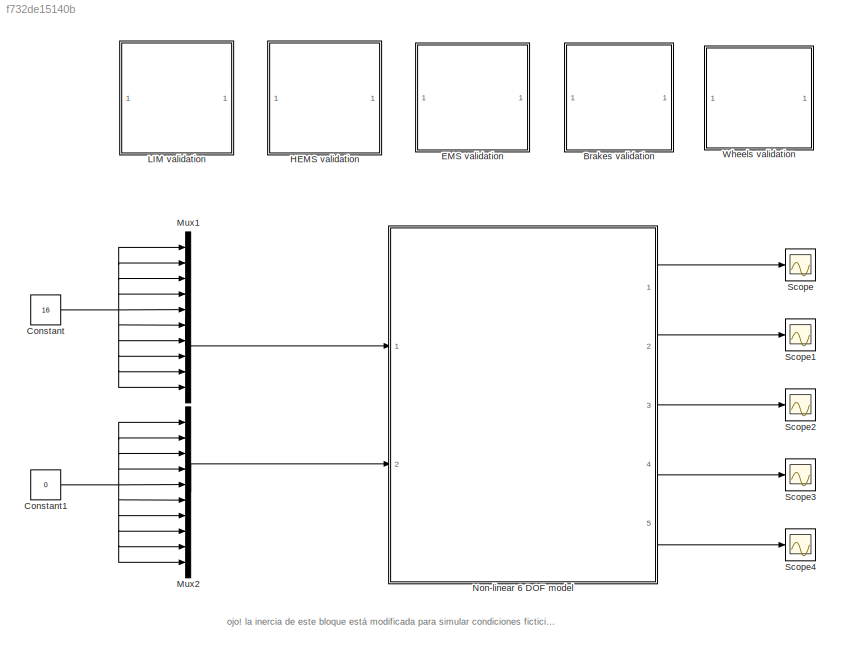
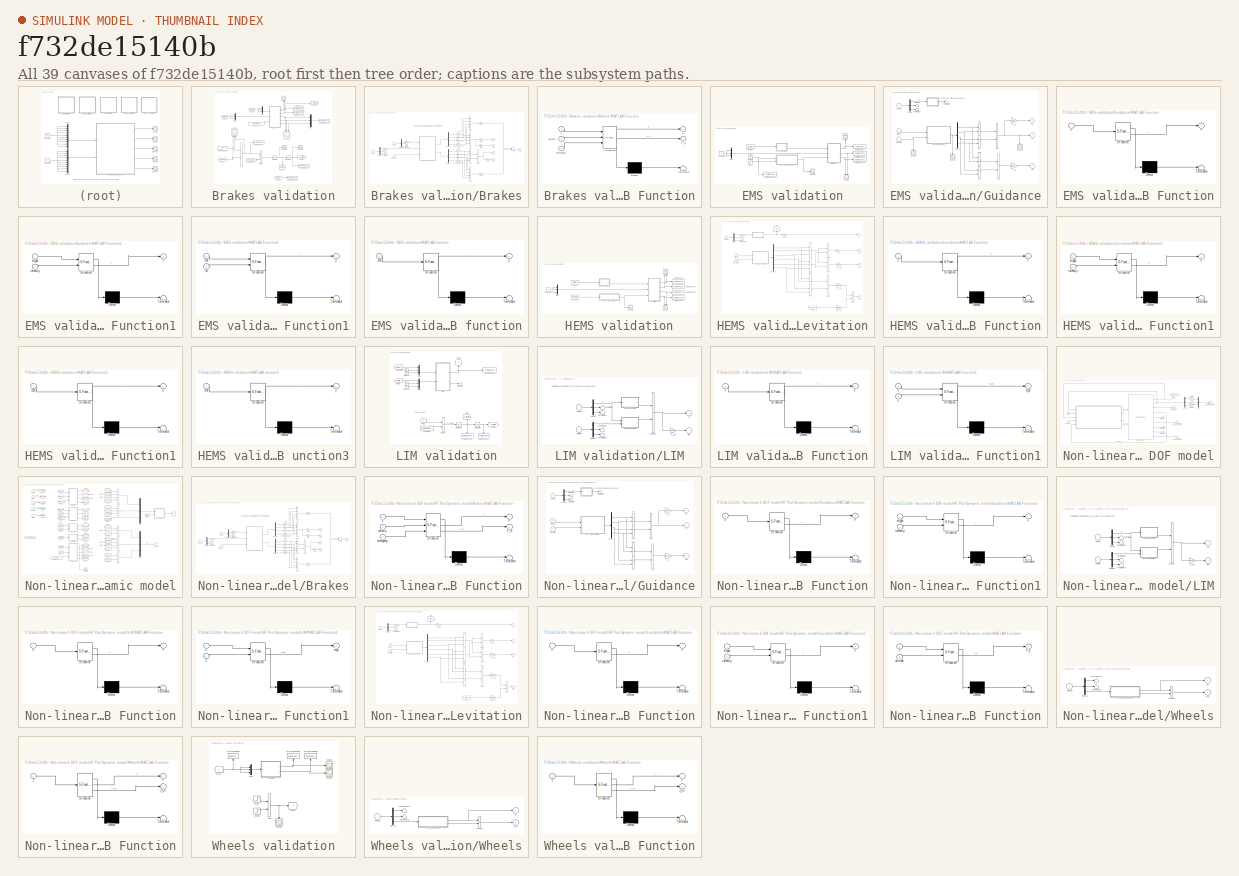
[diagram: thumbnail index - all 39 canvases of the model, root first then tree order]
MODEL slx_f732de15140b
KIND model
CONFIG AbsTol = auto
CONFIG EnableMultiTasking = off
CONFIG FixedStep = dtMax
CONFIG MaxStep = 1e-3
CONFIG MinStep = auto
CONFIG RelTol = 1e-5
CONFIG SampleTimeConstraint = Unconstrained
CONFIG SolverName = FixedStepAuto
CONFIG StartTime = 0.0
CONFIG StopTime = 8.0
BLOCK [SubSystem] Brakes validation
  Commented = on
  Ports = []
  RequestExecContextInheritance = off
BLOCK [Sum] Brakes validation/Add
  IconShape = rectangular
  Inputs = 2
  Ports = [2, 1]
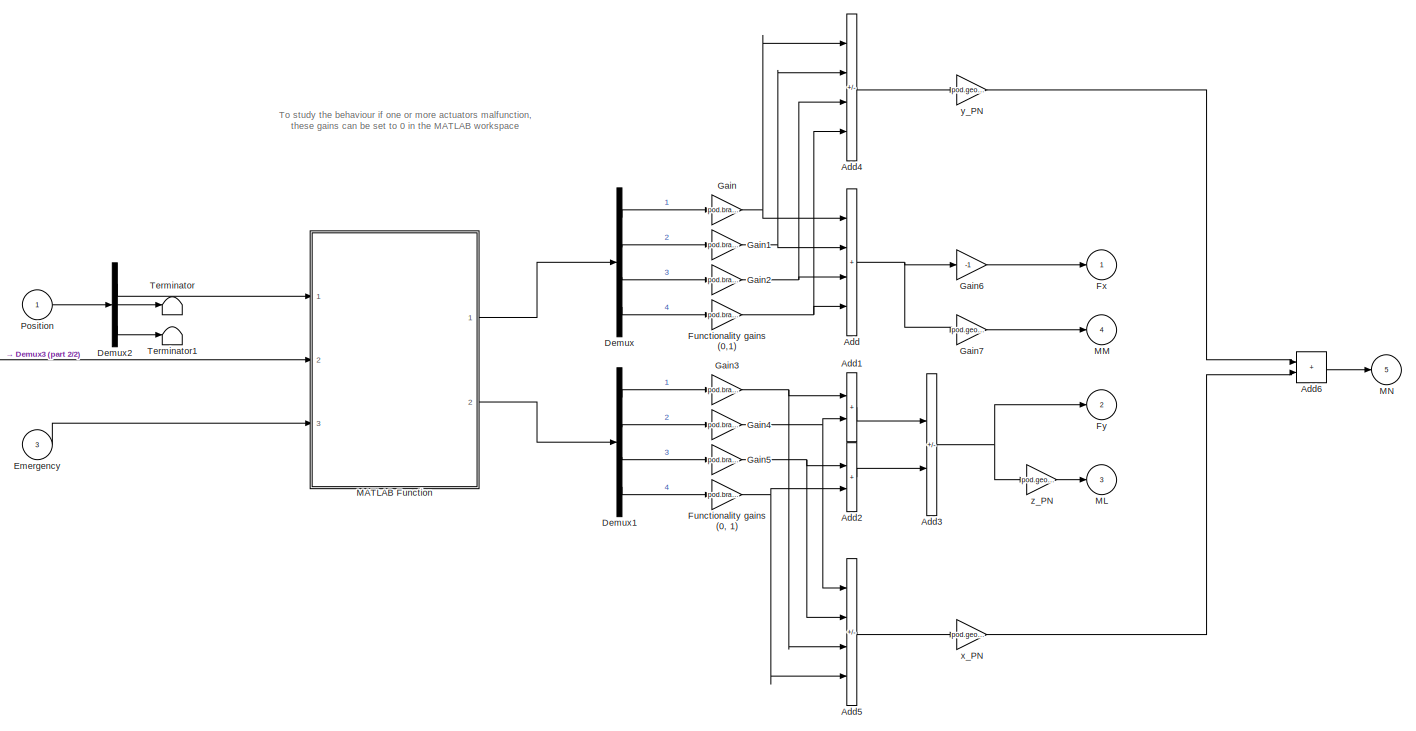
[diagram: Brakes validation/Brakes - part 1/2, most of the canvas]
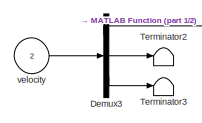
[diagram: Brakes validation/Brakes - part 2/2, middle left region]
BLOCK [SubSystem] Brakes validation/Brakes
  Ports = [3, 5]
  RequestExecContextInheritance = off
BLOCK [Sum] Brakes validation/Brakes/Add
  IconShape = rectangular
  Inputs = ++++
  Ports = [4, 1]
BLOCK [Sum] Brakes validation/Brakes/Add1
  IconShape = rectangular
  Ports = [2, 1]
BLOCK [Sum] Brakes validation/Brakes/Add2
  IconShape = rectangular
  Ports = [2, 1]
BLOCK [Sum] Brakes validation/Brakes/Add3
  IconShape = rectangular
  Inputs = +-
  Ports = [2, 1]
BLOCK [Sum] Brakes validation/Brakes/Add4
  IconShape = rectangular
  Inputs = ++--
  Ports = [4, 1]
BLOCK [Sum] Brakes validation/Brakes/Add5
  IconShape = rectangular
  Inputs = ++--
  Ports = [4, 1]
BLOCK [Sum] Brakes validation/Brakes/Add6
  IconShape = rectangular
  Ports = [2, 1]
BLOCK [Demux] Brakes validation/Brakes/Demux
  Ports = [1, 4]
BLOCK [Demux] Brakes validation/Brakes/Demux1
  Ports = [1, 4]
BLOCK [Demux] Brakes validation/Brakes/Demux2
  Outputs = 3
  Ports = [1, 3]
BLOCK [Demux] Brakes validation/Brakes/Demux3
  Outputs = 3
  Ports = [1, 3]
BLOCK [Inport] Brakes validation/Brakes/Emergency
  Port = 3
BLOCK [Gain] Brakes validation/Brakes/Functionality gains (0, 1)
  Gain = pod.brakes.working_actuators(4)
BLOCK [Gain] Brakes validation/Brakes/Functionality gains (0,1)
  Gain = pod.brakes.working_actuators(4)
BLOCK [Outport] Brakes validation/Brakes/Fx
BLOCK [Outport] Brakes validation/Brakes/Fy
  Port = 2
BLOCK [Gain] Brakes validation/Brakes/Gain
  Gain = pod.brakes.working_actuators(1)
BLOCK [Gain] Brakes validation/Brakes/Gain1
  Gain = pod.brakes.working_actuators(2)
BLOCK [Gain] Brakes validation/Brakes/Gain2
  Gain = pod.brakes.working_actuators(3)
BLOCK [Gain] Brakes validation/Brakes/Gain3
  Gain = pod.brakes.working_actuators(1)
BLOCK [Gain] Brakes validation/Brakes/Gain4
  Gain = pod.brakes.working_actuators(2)
BLOCK [Gain] Brakes validation/Brakes/Gain5
  Gain = pod.brakes.working_actuators(3)
BLOCK [Gain] Brakes validation/Brakes/Gain6
  Gain = -1
BLOCK [Gain] Brakes validation/Brakes/Gain7
  Gain = pod.geometry.z_PN
BLOCK [SubSystem] Brakes validation/Brakes/MATLAB Function
  ErrorFcn = Stateflow.Translate.translate
  PermitHierarchicalResolution = ExplicitOnly
  Ports = [3, 2]
  RequestExecContextInheritance = off
  SFBlockType = MATLAB Function
  TreatAsAtomicUnit = on
BLOCK [Demux] Brakes validation/Brakes/MATLAB Function/ Demux 
  Outputs = 1
  Ports = [1, 1]
BLOCK [S-Function] Brakes validation/Brakes/MATLAB Function/ SFunction 
  EnableBusSupport = on
  FunctionName = sf_sfun
  Parameters = pod
  PortCounts = [3 3]
  Ports = [3, 3]
  SFcnIsStateOwnerBlock = off
  SFunctionDeploymentMode = off
  Tag = Stateflow S-Function 11
BLOCK [Terminator] Brakes validation/Brakes/MATLAB Function/ Terminator 
BLOCK [Outport] Brakes validation/Brakes/MATLAB Function/F
BLOCK [Outport] Brakes validation/Brakes/MATLAB Function/F_N
  Port = 2
BLOCK [Inport] Brakes validation/Brakes/MATLAB Function/emergency
  Port = 3
BLOCK [Inport] Brakes validation/Brakes/MATLAB Function/velocity
  Port = 2
BLOCK [Inport] Brakes validation/Brakes/MATLAB Function/x
BLOCK [Outport] Brakes validation/Brakes/ML
  Port = 3
BLOCK [Outport] Brakes validation/Brakes/MM
  Port = 4
BLOCK [Outport] Brakes validation/Brakes/MN
  Port = 5
BLOCK [Inport] Brakes validation/Brakes/Position
BLOCK [Terminator] Brakes validation/Brakes/Terminator
BLOCK [Terminator] Brakes validation/Brakes/Terminator1
BLOCK [Terminator] Brakes validation/Brakes/Terminator2
BLOCK [Terminator] Brakes validation/Brakes/Terminator3
BLOCK [Inport] Brakes validation/Brakes/velocity
  Port = 2
BLOCK [Gain] Brakes validation/Brakes/x_PN
  Gain = pod.geometry.x_PN
BLOCK [Gain] Brakes validation/Brakes/y_PN
  Gain = pod.geometry.y_PN
BLOCK [Gain] Brakes validation/Brakes/z_PN
  Gain = pod.geometry.z_PN
BLOCK [Constant] Brakes validation/Constant
  Value = pod.mass.mass
BLOCK [Product] Brakes validation/Divide
  Inputs = */
  Ports = [2, 1]
BLOCK [From] Brakes validation/From
  GotoTag = position
BLOCK [From] Brakes validation/From1
  GotoTag = F_brakes
BLOCK [From] Brakes validation/From2
  GotoTag = velocity
BLOCK [From] Brakes validation/From3
  GotoTag = velocity
BLOCK [Goto] Brakes validation/Goto
  GotoTag = F_brakes
BLOCK [Goto] Brakes validation/Goto1
  GotoTag = position
BLOCK [Goto] Brakes validation/Goto2
  GotoTag = velocity
  NameLocation = left
BLOCK [Integrator] Brakes validation/Integrator
  Ports = [1, 1]
BLOCK [Integrator] Brakes validation/Integrator1
  Ports = [1, 1]
BLOCK [Mux] Brakes validation/Mux
  DisplayOption = bar
  Inputs = 3
  Ports = [3, 1]
BLOCK [Mux] Brakes validation/Mux1
  DisplayOption = bar
  Inputs = 3
  Ports = [3, 1]
BLOCK [Mux] Brakes validation/Mux2
  DisplayOption = bar
  Inputs = 3
  Ports = [3, 1]
BLOCK [Scope] Brakes validation/Scope
  Floating = off
  NameLocation = left
  NumInputPorts = 3
  Ports = [3]
  ScopeSpecificationString = Simulink.scopes.TimeScopeBlockCfg('CurrentConfiguration', extmgr.ConfigurationSet(extmgr.Configuration('Core','General UI',true),extmgr.Configuration('Core','Source UI',true),extmgr.Configuration('Sources','WiredSimulink',true,'DataLoggingVariableName','ScopeData6'),extmgr.Configuration('Visuals','Time Domain',true),extmgr.Configuration('Tools','Plot Navigation',true),extmgr.Configuration('Tools',...<+40ch>
BLOCK [Scope] Brakes validation/Scope1
  Floating = off
  NameLocation = right
  NumInputPorts = 2
  Ports = [2]
  ScopeSpecificationString = Simulink.scopes.TimeScopeBlockCfg('CurrentConfiguration', extmgr.ConfigurationSet(extmgr.Configuration('Core','General UI',true),extmgr.Configuration('Core','Source UI',true),extmgr.Configuration('Sources','WiredSimulink',true,'DataLoggingVariableName','ScopeData7'),extmgr.Configuration('Visuals','Time Domain',true,'SerializedDisplays',{struct('MinYLimReal','-2016.06671','MaxYLimReal','224.00741',...<+1398ch>
BLOCK [Scope] Brakes validation/Scope2
  Floating = off
  NameLocation = right
  NumInputPorts = 3
  Ports = [3]
  ScopeSpecificationString = Simulink.scopes.TimeScopeBlockCfg('CurrentConfiguration', extmgr.ConfigurationSet(extmgr.Configuration('Core','General UI',true),extmgr.Configuration('Core','Source UI',true),extmgr.Configuration('Sources','WiredSimulink',true,'DataLoggingVariableName','ScopeData6'),extmgr.Configuration('Visuals','Time Domain',true,'SerializedDisplays',{struct('MinYLimReal','-497.97234','MaxYLimReal','1166.44137',...<+1435ch>
BLOCK [Scope] Brakes validation/Scope3
  Floating = off
  NumInputPorts = 1
  Ports = [1]
  ScopeSpecificationString = Simulink.scopes.TimeScopeBlockCfg('CurrentConfiguration', extmgr.ConfigurationSet(extmgr.Configuration('Core','General UI',true),extmgr.Configuration('Core','Source UI',true),extmgr.Configuration('Sources','WiredSimulink',true,'DataLoggingVariableName','ScopeData7'),extmgr.Configuration('Visuals','Time Domain',true,'SerializedDisplays',{struct('MinYLimReal','-3.3027','MaxYLimReal','29.72432','YLab...<+1400ch>
BLOCK [Scope] Brakes validation/Scope4
  Floating = off
  NumInputPorts = 1
  Ports = [1]
  ScopeSpecificationString = Simulink.scopes.TimeScopeBlockCfg('CurrentConfiguration', extmgr.ConfigurationSet(extmgr.Configuration('Core','General UI',true),extmgr.Configuration('Core','Source UI',true),extmgr.Configuration('Sources','WiredSimulink',true,'DataLoggingVariableName','ScopeData8'),extmgr.Configuration('Visuals','Time Domain',true,'SerializedDisplays',{struct('MinYLimReal','-1.03022','MaxYLimReal','9.26469','YLab...<+1369ch>
BLOCK [ToWorkspace] Brakes validation/To Workspace
  FixptAsFi = on
  MaxDataPoints = inf
  Ports = [1]
  SampleTime = -1
  SaveFormat = Timeseries
  VariableName = force_x
BLOCK [ToWorkspace] Brakes validation/To Workspace1
  FixptAsFi = on
  MaxDataPoints = inf
  Ports = [1]
  SampleTime = -1
  SaveFormat = Timeseries
  VariableName = force_y
BLOCK [ToWorkspace] Brakes validation/To Workspace2
  FixptAsFi = on
  MaxDataPoints = inf
  Ports = [1]
  SampleTime = -1
  SaveFormat = Timeseries
  VariableName = moments
BLOCK [ToWorkspace] Brakes validation/To Workspace5
  FixptAsFi = on
  MaxDataPoints = inf
  Ports = [1]
  SampleTime = -1
  SaveFormat = Timeseries
  VariableName = position
BLOCK [ToWorkspace] Brakes validation/To Workspace6
  FixptAsFi = on
  MaxDataPoints = inf
  Ports = [1]
  SampleTime = -1
  SaveFormat = Timeseries
  VariableName = velocity
BLOCK [ToWorkspace] Brakes validation/To Workspace7
  FixptAsFi = on
  MaxDataPoints = inf
  Ports = [1]
  SampleTime = -1
  SaveFormat = Timeseries
  VariableName = force
BLOCK [Constant] Brakes validation/emergency
  Value = pod.brakes.emergency_flag
BLOCK [Step] Brakes validation/impulse force
  After = 0
  Before = 1000
  SampleTime = 0
BLOCK [Constant] Constant
  Commented = on
  Value = 16
BLOCK [Constant] Constant1
  Commented = on
  Value = 0
BLOCK [SubSystem] EMS validation
  Ports = []
  RequestExecContextInheritance = off
BLOCK [Constant] EMS validation/Constant
  Value = airgap
BLOCK [Constant] EMS validation/Constant2
  Value = 0
BLOCK [SubSystem] EMS validation/Guidance
  Ports = [3, 3]
  RequestExecContextInheritance = off
BLOCK [Gain] EMS validation/Guidance/- x_G
  Gain = - pod.geometry.x_G
BLOCK [Sum] EMS validation/Guidance/Add
  IconShape = rectangular
  Ports = [2, 1]
BLOCK [Sum] EMS validation/Guidance/Add1
  IconShape = rectangular
  Ports = [2, 1]
BLOCK [Sum] EMS validation/Guidance/Add2
  IconShape = rectangular
  Inputs = +-
  Ports = [2, 1]
BLOCK [Sum] EMS validation/Guidance/Add3
  IconShape = rectangular
  Ports = [2, 1]
BLOCK [Sum] EMS validation/Guidance/Add4
  IconShape = rectangular
  Ports = [2, 1]
BLOCK [Sum] EMS validation/Guidance/Add5
  IconShape = rectangular
  Inputs = +-
  Ports = [2, 1]
BLOCK [Inport] EMS validation/Guidance/Airgaps
BLOCK [Demux] EMS validation/Guidance/Demux
  Outputs = 3
  Ports = [1, 3]
BLOCK [Demux] EMS validation/Guidance/Demux1
  Ports = [1, 4]
BLOCK [Outport] EMS validation/Guidance/Fy
BLOCK [Inport] EMS validation/Guidance/Intensities
  Port = 3
BLOCK [SubSystem] EMS validation/Guidance/MATLAB Function
  ErrorFcn = Stateflow.Translate.translate
  PermitHierarchicalResolution = ExplicitOnly
  Ports = [1, 1]
  RequestExecContextInheritance = off
  SFBlockType = MATLAB Function
  TreatAsAtomicUnit = on
BLOCK [Demux] EMS validation/Guidance/MATLAB Function/ Demux 
  Outputs = 1
  Ports = [1, 1]
BLOCK [S-Function] EMS validation/Guidance/MATLAB Function/ SFunction 
  EnableBusSupport = on
  FunctionName = sf_sfun
  PortCounts = [1 2]
  Ports = [1, 2]
  SFcnIsStateOwnerBlock = off
  SFunctionDeploymentMode = off
  Tag = Stateflow S-Function 2
BLOCK [Terminator] EMS validation/Guidance/MATLAB Function/ Terminator 
BLOCK [Outport] EMS validation/Guidance/MATLAB Function/F
BLOCK [Inport] EMS validation/Guidance/MATLAB Function/v
BLOCK [SubSystem] EMS validation/Guidance/MATLAB Function1
  ErrorFcn = Stateflow.Translate.translate
  PermitHierarchicalResolution = ExplicitOnly
  Ports = [2, 1]
  RequestExecContextInheritance = off
  SFBlockType = MATLAB Function
  TreatAsAtomicUnit = on
BLOCK [Demux] EMS validation/Guidance/MATLAB Function1/ Demux 
  Outputs = 1
  Ports = [1, 1]
BLOCK [S-Function] EMS validation/Guidance/MATLAB Function1/ SFunction 
  EnableBusSupport = on
  FunctionName = sf_sfun
  Parameters = pod
  PortCounts = [2 2]
  Ports = [2, 2]
  SFcnIsStateOwnerBlock = off
  SFunctionDeploymentMode = off
  Tag = Stateflow S-Function 5
BLOCK [Terminator] EMS validation/Guidance/MATLAB Function1/ Terminator 
BLOCK [Outport] EMS validation/Guidance/MATLAB Function1/F
BLOCK [Inport] EMS validation/Guidance/MATLAB Function1/airgap
BLOCK [Inport] EMS validation/Guidance/MATLAB Function1/intensity
  Port = 2
BLOCK [Outport] EMS validation/Guidance/ML
  Port = 2
BLOCK [Outport] EMS validation/Guidance/MN
  Port = 3
BLOCK [Scope] EMS validation/Guidance/Scope
  Floating = off
  NameLocation = left
  NumInputPorts = 1
  Ports = [1]
  ScopeSpecificationString = Simulink.scopes.TimeScopeBlockCfg('CurrentConfiguration', extmgr.ConfigurationSet(extmgr.Configuration('Core','General UI',true),extmgr.Configuration('Core','Source UI',true),extmgr.Configuration('Sources','WiredSimulink',true,'DataLoggingVariableName','ScopeData1'),extmgr.Configuration('Visuals','Time Domain',true,'SerializedDisplays',{struct('MinYLimReal','-16.35375','MaxYLimReal','4.18375','YLa...<+1442ch>
BLOCK [Scope] EMS validation/Guidance/Scope1
  Floating = off
  NameLocation = left
  NumInputPorts = 1
  Ports = [1]
  ScopeSpecificationString = Simulink.scopes.TimeScopeBlockCfg('CurrentConfiguration', extmgr.ConfigurationSet(extmgr.Configuration('Core','General UI',true),extmgr.Configuration('Core','Source UI',true),extmgr.Configuration('Sources','WiredSimulink',true,'DataLoggingVariableName','ScopeData2'),extmgr.Configuration('Visuals','Time Domain',true),extmgr.Configuration('Tools','Plot Navigation',true),extmgr.Configuration('Tools',...<+40ch>
BLOCK [Scope] EMS validation/Guidance/Scope2
  Floating = off
  NameLocation = left
  NumInputPorts = 1
  Ports = [1]
  ScopeSpecificationString = Simulink.scopes.TimeScopeBlockCfg('CurrentConfiguration', extmgr.ConfigurationSet(extmgr.Configuration('Core','General UI',true),extmgr.Configuration('Core','Source UI',true),extmgr.Configuration('Sources','WiredSimulink',true,'DataLoggingVariableName','ScopeData3'),extmgr.Configuration('Visuals','Time Domain',true,'SerializedDisplays',{struct('MinYLimReal','-1.25','MaxYLimReal','11.25','YLabelRea...<+1504ch>
BLOCK [Terminator] EMS validation/Guidance/Terminator
BLOCK [Terminator] EMS validation/Guidance/Terminator1
BLOCK [Terminator] EMS validation/Guidance/Terminator2
BLOCK [Inport] EMS validation/Guidance/Velocity
  Port = 2
BLOCK [Gain] EMS validation/Guidance/z_G
  Gain = pod.geometry.z_G
BLOCK [SubSystem] EMS validation/MATLAB Function1
  ErrorFcn = Stateflow.Translate.translate
  PermitHierarchicalResolution = ExplicitOnly
  Ports = [2, 1]
  RequestExecContextInheritance = off
  SFBlockType = MATLAB Function
  TreatAsAtomicUnit = on
BLOCK [Demux] EMS validation/MATLAB Function1/ Demux 
  Outputs = 1
  Ports = [1, 1]
BLOCK [S-Function] EMS validation/MATLAB Function1/ SFunction 
  EnableBusSupport = on
  FunctionName = sf_sfun
  PortCounts = [2 2]
  Ports = [2, 2]
  SFcnIsStateOwnerBlock = off
  SFunctionDeploymentMode = off
  Tag = Stateflow S-Function 9
BLOCK [Terminator] EMS validation/MATLAB Function1/ Terminator 
BLOCK [Inport] EMS validation/MATLAB Function1/cnst
BLOCK [Inport] EMS validation/MATLAB Function1/idx
  Port = 2
BLOCK [Outport] EMS validation/MATLAB Function1/y
BLOCK [SubSystem] EMS validation/MATLAB function
  ErrorFcn = Stateflow.Translate.translate
  PermitHierarchicalResolution = ExplicitOnly
  Ports = [1, 1]
  RequestExecContextInheritance = off
  SFBlockType = MATLAB Function
  TreatAsAtomicUnit = on
BLOCK [Demux] EMS validation/MATLAB function/ Demux 
  Outputs = 1
  Ports = [1, 1]
BLOCK [S-Function] EMS validation/MATLAB function/ SFunction 
  EnableBusSupport = on
  FunctionName = sf_sfun
  PortCounts = [1 2]
  Ports = [1, 2]
  SFcnIsStateOwnerBlock = off
  SFunctionDeploymentMode = off
  Tag = Stateflow S-Function 10
BLOCK [Terminator] EMS validation/MATLAB function/ Terminator 
BLOCK [Inport] EMS validation/MATLAB function/cnst
BLOCK [Outport] EMS validation/MATLAB function/y
BLOCK [Mux] EMS validation/Mux
  DisplayOption = bar
  Inputs = 3
  Ports = [3, 1]
BLOCK [Scope] EMS validation/Scope
  Floating = off
  NameLocation = left
  NumInputPorts = 2
  Ports = [2]
  ScopeSpecificationString = Simulink.scopes.TimeScopeBlockCfg('CurrentConfiguration', extmgr.ConfigurationSet(extmgr.Configuration('Core','General UI',true),extmgr.Configuration('Core','Source UI',true),extmgr.Configuration('Sources','WiredSimulink',true,'DataLoggingVariableName','ScopeData4'),extmgr.Configuration('Visuals','Time Domain',true,'SerializedDisplays',{struct('MinYLimReal','-0.4784','MaxYLimReal','2.75913','YLabe...<+1378ch>
BLOCK [Scope] EMS validation/Scope1
  Floating = off
  NameLocation = right
  NumInputPorts = 1
  Ports = [1]
  ScopeSpecificationString = Simulink.scopes.TimeScopeBlockCfg('CurrentConfiguration', extmgr.ConfigurationSet(extmgr.Configuration('Core','General UI',true),extmgr.Configuration('Core','Source UI',true),extmgr.Configuration('Sources','WiredSimulink',true,'DataLoggingVariableName','ScopeData5'),extmgr.Configuration('Visuals','Time Domain',true,'SerializedDisplays',{struct('MinYLimReal','-2.05375','MaxYLimReal','18.48375','YLa...<+1373ch>
BLOCK [Scope] EMS validation/Scope2
  Floating = off
  NumInputPorts = 1
  Ports = [1]
  ScopeSpecificationString = Simulink.scopes.TimeScopeBlockCfg('CurrentConfiguration', extmgr.ConfigurationSet(extmgr.Configuration('Core','General UI',true),extmgr.Configuration('Core','Source UI',true),extmgr.Configuration('Sources','WiredSimulink',true,'DataLoggingVariableName','ScopeData3'),extmgr.Configuration('Visuals','Time Domain',true,'SerializedDisplays',{struct('MinYLimReal','-1','MaxYLimReal','11.00000','YLabelRea...<+1812ch>
BLOCK [Step] EMS validation/Step
  After = intensity + 10
  Before = intensity
  SampleTime = 0
  Time = 3
BLOCK [Step] EMS validation/Step1
  After = 7
  Before = 7
  SampleTime = 0
  Time = 10
BLOCK [ToWorkspace] EMS validation/To Workspace
  FixptAsFi = on
  MaxDataPoints = inf
  Ports = [1]
  SampleTime = -1
  SaveFormat = Timeseries
  VariableName = Fy
BLOCK [ToWorkspace] EMS validation/To Workspace1
  FixptAsFi = on
  MaxDataPoints = inf
  Ports = [1]
  SampleTime = -1
  SaveFormat = Timeseries
  VariableName = ML
BLOCK [ToWorkspace] EMS validation/To Workspace2
  FixptAsFi = on
  MaxDataPoints = inf
  Ports = [1]
  SampleTime = -1
  SaveFormat = Timeseries
  VariableName = MN
BLOCK [ToWorkspace] EMS validation/To Workspace3
  FixptAsFi = on
  MaxDataPoints = inf
  Ports = [1]
  SampleTime = -1
  SaveFormat = Timeseries
  VariableName = current
BLOCK [SubSystem] HEMS validation
  Commented = on
  Ports = []
  RequestExecContextInheritance = off
BLOCK [Constant] HEMS validation/Constant
  Value = airgap
BLOCK [Constant] HEMS validation/Constant1
  Value = intensity
BLOCK [Constant] HEMS validation/Constant2
  Value = 5
BLOCK [SubSystem] HEMS validation/Levitation
  Ports = [3, 4]
  RequestExecContextInheritance = off
BLOCK [Gain] HEMS validation/Levitation/- y_LEV
  Gain = - pod.geometry.y_LEV
BLOCK [Gain] HEMS validation/Levitation/6 * z_LEV
  Gain = 6 * pod.geometry.z_LEV
BLOCK [Sum] HEMS validation/Levitation/Add
  IconShape = rectangular
  Inputs = +++
  Ports = [3, 1]
BLOCK [Sum] HEMS validation/Levitation/Add1
  IconShape = rectangular
  Inputs = +++
  Ports = [3, 1]
BLOCK [Sum] HEMS validation/Levitation/Add2
  IconShape = rectangular
  Ports = [2, 1]
BLOCK [Sum] HEMS validation/Levitation/Add3
  IconShape = rectangular
  Inputs = +-
  Ports = [2, 1]
BLOCK [Sum] HEMS validation/Levitation/Add4
  IconShape = rectangular
  Ports = [2, 1]
BLOCK [Sum] HEMS validation/Levitation/Add5
  IconShape = rectangular
  Ports = [2, 1]
BLOCK [Sum] HEMS validation/Levitation/Add6
  IconShape = rectangular
  Inputs = +-
  Ports = [2, 1]
BLOCK [Sum] HEMS validation/Levitation/Add7
  IconShape = rectangular
  Ports = [2, 1]
BLOCK [Inport] HEMS validation/Levitation/Airgaps
BLOCK [Demux] HEMS validation/Levitation/Demux
  Outputs = 3
  Ports = [1, 3]
BLOCK [Demux] HEMS validation/Levitation/Demux1
  Outputs = 6
  Ports = [1, 6]
BLOCK [From] HEMS validation/Levitation/From
  GotoTag = F_LEV_X
BLOCK [Outport] HEMS validation/Levitation/Fx
BLOCK [Outport] HEMS validation/Levitation/Fz
  Port = 2
BLOCK [Gain] HEMS validation/Levitation/Gain
  Gain = -1
BLOCK [Gain] HEMS validation/Levitation/Gain1
  Gain = -6
BLOCK [Goto] HEMS validation/Levitation/Goto
  GotoTag = F_LEV_X
  NameLocation = right
BLOCK [Inport] HEMS validation/Levitation/Intensities
  Port = 3
BLOCK [SubSystem] HEMS validation/Levitation/MATLAB Function
  ErrorFcn = Stateflow.Translate.translate
  PermitHierarchicalResolution = ExplicitOnly
  Ports = [1, 1]
  RequestExecContextInheritance = off
  SFBlockType = MATLAB Function
  TreatAsAtomicUnit = on
BLOCK [Demux] HEMS validation/Levitation/MATLAB Function/ Demux 
  Outputs = 1
  Ports = [1, 1]
BLOCK [S-Function] HEMS validation/Levitation/MATLAB Function/ SFunction 
  EnableBusSupport = on
  FunctionName = sf_sfun
  Parameters = pod
  PortCounts = [1 2]
  Ports = [1, 2]
  SFcnIsStateOwnerBlock = off
  SFunctionDeploymentMode = off
  Tag = Stateflow S-Function 1
BLOCK [Terminator] HEMS validation/Levitation/MATLAB Function/ Terminator 
BLOCK [Outport] HEMS validation/Levitation/MATLAB Function/F
BLOCK [Inport] HEMS validation/Levitation/MATLAB Function/v
BLOCK [SubSystem] HEMS validation/Levitation/MATLAB Function1
  ErrorFcn = Stateflow.Translate.translate
  PermitHierarchicalResolution = ExplicitOnly
  Ports = [2, 1]
  RequestExecContextInheritance = off
  SFBlockType = MATLAB Function
  TreatAsAtomicUnit = on
BLOCK [Demux] HEMS validation/Levitation/MATLAB Function1/ Demux 
  Outputs = 1
  Ports = [1, 1]
BLOCK [S-Function] HEMS validation/Levitation/MATLAB Function1/ SFunction 
  EnableBusSupport = on
  FunctionName = sf_sfun
  Parameters = pod
  PortCounts = [2 2]
  Ports = [2, 2]
  SFcnIsStateOwnerBlock = off
  SFunctionDeploymentMode = off
  Tag = Stateflow S-Function 3
BLOCK [Terminator] HEMS validation/Levitation/MATLAB Function1/ Terminator 
BLOCK [Outport] HEMS validation/Levitation/MATLAB Function1/F
BLOCK [Inport] HEMS validation/Levitation/MATLAB Function1/airgap
BLOCK [Inport] HEMS validation/Levitation/MATLAB Function1/intensity
  Port = 2
BLOCK [Outport] HEMS validation/Levitation/ML
  Port = 3
BLOCK [Outport] HEMS validation/Levitation/MM
  Port = 4
BLOCK [Terminator] HEMS validation/Levitation/Terminator
BLOCK [Terminator] HEMS validation/Levitation/Terminator1
BLOCK [Inport] HEMS validation/Levitation/Velocity
  Port = 2
BLOCK [Gain] HEMS validation/Levitation/x_LEV
  Gain = pod.geometry.x_LEV
BLOCK [SubSystem] HEMS validation/MATLAB Function1
  ErrorFcn = Stateflow.Translate.translate
  PermitHierarchicalResolution = ExplicitOnly
  Ports = [1, 1]
  RequestExecContextInheritance = off
  SFBlockType = MATLAB Function
  TreatAsAtomicUnit = on
BLOCK [Demux] HEMS validation/MATLAB Function1/ Demux 
  Outputs = 1
  Ports = [1, 1]
BLOCK [S-Function] HEMS validation/MATLAB Function1/ SFunction 
  EnableBusSupport = on
  FunctionName = sf_sfun
  PortCounts = [1 2]
  Ports = [1, 2]
  SFcnIsStateOwnerBlock = off
  SFunctionDeploymentMode = off
  Tag = Stateflow S-Function 4
BLOCK [Terminator] HEMS validation/MATLAB Function1/ Terminator 
BLOCK [Inport] HEMS validation/MATLAB Function1/cnst
BLOCK [Outport] HEMS validation/MATLAB Function1/y
BLOCK [SubSystem] HEMS validation/MATLAB unction3
  ErrorFcn = Stateflow.Translate.translate
  PermitHierarchicalResolution = ExplicitOnly
  Ports = [1, 1]
  RequestExecContextInheritance = off
  SFBlockType = MATLAB Function
  TreatAsAtomicUnit = on
BLOCK [Demux] HEMS validation/MATLAB unction3/ Demux 
  Outputs = 1
  Ports = [1, 1]
BLOCK [S-Function] HEMS validation/MATLAB unction3/ SFunction 
  EnableBusSupport = on
  FunctionName = sf_sfun
  PortCounts = [1 2]
  Ports = [1, 2]
  SFcnIsStateOwnerBlock = off
  SFunctionDeploymentMode = off
  Tag = Stateflow S-Function 8
BLOCK [Terminator] HEMS validation/MATLAB unction3/ Terminator 
BLOCK [Inport] HEMS validation/MATLAB unction3/cnst
BLOCK [Outport] HEMS validation/MATLAB unction3/y
BLOCK [Mux] HEMS validation/Mux
  DisplayOption = bar
  Inputs = 3
  Ports = [3, 1]
BLOCK [Scope] HEMS validation/Scope
  Floating = off
  NameLocation = right
  NumInputPorts = 2
  Ports = [2]
  ScopeSpecificationString = Simulink.scopes.TimeScopeBlockCfg('CurrentConfiguration', extmgr.ConfigurationSet(extmgr.Configuration('Core','General UI',true),extmgr.Configuration('Core','Source UI',true),extmgr.Configuration('Sources','WiredSimulink',true),extmgr.Configuration('Visuals','Time Domain',true,'SerializedDisplays',{struct('MinYLimReal','-1400','MaxYLimReal','0','YLabelReal','','MinYLimMag','  0.00000','MaxYLimMag'...<+1430ch>
BLOCK [Scope] HEMS validation/Scope1
  Floating = off
  NameLocation = left
  NumInputPorts = 2
  Ports = [2]
  ScopeSpecificationString = Simulink.scopes.TimeScopeBlockCfg('CurrentConfiguration', extmgr.ConfigurationSet(extmgr.Configuration('Core','General UI',true),extmgr.Configuration('Core','Source UI',true),extmgr.Configuration('Sources','WiredSimulink',true,'DataLoggingVariableName','ScopeData1'),extmgr.Configuration('Visuals','Time Domain',true,'SerializedDisplays',{struct('MinYLimReal','-2.11875','MaxYLimReal','19.06874','YLa...<+1390ch>
BLOCK [Scope] HEMS validation/Scope2
  Floating = off
  NumInputPorts = 1
  Ports = [1]
  ScopeSpecificationString = Simulink.scopes.TimeScopeBlockCfg('CurrentConfiguration', extmgr.ConfigurationSet(extmgr.Configuration('Core','General UI',true),extmgr.Configuration('Core','Source UI',true),extmgr.Configuration('Sources','WiredSimulink',true,'DataLoggingVariableName','ScopeData2'),extmgr.Configuration('Visuals','Time Domain',true,'SerializedDisplays',{struct('MinYLimReal','-1','MaxYLimReal','11.00000','YLabelRea...<+1810ch>
BLOCK [ToWorkspace] HEMS validation/To Workspace
  FixptAsFi = on
  MaxDataPoints = inf
  Ports = [1]
  SampleTime = -1
  SaveFormat = Timeseries
  VariableName = Fx
BLOCK [ToWorkspace] HEMS validation/To Workspace1
  FixptAsFi = on
  MaxDataPoints = inf
  Ports = [1]
  SampleTime = -1
  SaveFormat = Timeseries
  VariableName = Fz
BLOCK [ToWorkspace] HEMS validation/To Workspace2
  FixptAsFi = on
  MaxDataPoints = inf
  Ports = [1]
  SampleTime = -1
  SaveFormat = Timeseries
  VariableName = ML
BLOCK [ToWorkspace] HEMS validation/To Workspace3
  FixptAsFi = on
  MaxDataPoints = inf
  Ports = [1]
  SampleTime = -1
  SaveFormat = Timeseries
  VariableName = MM
BLOCK [SubSystem] LIM validation
  Commented = on
  Ports = []
  RequestExecContextInheritance = off
BLOCK [Constant] LIM validation/Constant1
  Value = pod.mass.mass
BLOCK [Product] LIM validation/Divide1
  Inputs = */
  Ports = [2, 1]
BLOCK [From] LIM validation/From2
  GotoTag = F
BLOCK [From] LIM validation/From7
  GotoTag = velocity
BLOCK [From] LIM validation/From9
  GotoTag = position
BLOCK [Goto] LIM validation/Goto
  GotoTag = velocity
  NameLocation = right
BLOCK [Goto] LIM validation/Goto1
  GotoTag = position
BLOCK [Goto] LIM validation/Goto2
  GotoTag = F
  NameLocation = right
BLOCK [Ground] LIM validation/Ground
BLOCK [Ground] LIM validation/Ground1
BLOCK [Ground] LIM validation/Ground2
BLOCK [Ground] LIM validation/Ground3
BLOCK [Integrator] LIM validation/Integrator2
  Ports = [1, 1]
BLOCK [Integrator] LIM validation/Integrator3
  Ports = [1, 1]
BLOCK [SubSystem] LIM validation/LIM
  Ports = [2, 2]
  RequestExecContextInheritance = off
BLOCK [Demux] LIM validation/LIM/Demux
  Outputs = 3
  Ports = [1, 3]
BLOCK [Demux] LIM validation/LIM/Demux1
  Outputs = 3
  Ports = [1, 3]
BLOCK [Outport] LIM validation/LIM/Fx
BLOCK [SubSystem] LIM validation/LIM/MATLAB Function
  ErrorFcn = Stateflow.Translate.translate
  PermitHierarchicalResolution = ExplicitOnly
  Ports = [1, 1]
  RequestExecContextInheritance = off
  SFBlockType = MATLAB Function
  TreatAsAtomicUnit = on
BLOCK [Demux] LIM validation/LIM/MATLAB Function/ Demux 
  Outputs = 1
  Ports = [1, 1]
BLOCK [S-Function] LIM validation/LIM/MATLAB Function/ SFunction 
  EnableBusSupport = on
  FunctionName = sf_sfun
  Parameters = pod
  PortCounts = [1 2]
  Ports = [1, 2]
  SFcnIsStateOwnerBlock = off
  SFunctionDeploymentMode = off
  Tag = Stateflow S-Function 6
BLOCK [Terminator] LIM validation/LIM/MATLAB Function/ Terminator 
BLOCK [Outport] LIM validation/LIM/MATLAB Function/F
BLOCK [Inport] LIM validation/LIM/MATLAB Function/v
BLOCK [SubSystem] LIM validation/LIM/MATLAB Function1
  ErrorFcn = Stateflow.Translate.translate
  PermitHierarchicalResolution = ExplicitOnly
  Ports = [2, 1]
  RequestExecContextInheritance = off
  SFBlockType = MATLAB Function
  TreatAsAtomicUnit = on
BLOCK [Demux] LIM validation/LIM/MATLAB Function1/ Demux 
  Outputs = 1
  Ports = [1, 1]
BLOCK [S-Function] LIM validation/LIM/MATLAB Function1/ SFunction 
  EnableBusSupport = on
  FunctionName = sf_sfun
  Parameters = pod
  PortCounts = [2 2]
  Ports = [2, 2]
  SFcnIsStateOwnerBlock = off
  SFunctionDeploymentMode = off
  Tag = Stateflow S-Function 7
BLOCK [Terminator] LIM validation/LIM/MATLAB Function1/ Terminator 
BLOCK [Outport] LIM validation/LIM/MATLAB Function1/sign
BLOCK [Inport] LIM validation/LIM/MATLAB Function1/v
BLOCK [Inport] LIM validation/LIM/MATLAB Function1/x
  Port = 2
BLOCK [Outport] LIM validation/LIM/MM
  Port = 2
BLOCK [Inport] LIM validation/LIM/Position
  Port = 2
BLOCK [Product] LIM validation/LIM/Product
  Ports = [2, 1]
BLOCK [Terminator] LIM validation/LIM/Terminator
BLOCK [Terminator] LIM validation/LIM/Terminator1
BLOCK [Terminator] LIM validation/LIM/Terminator2
BLOCK [Terminator] LIM validation/LIM/Terminator3
BLOCK [Inport] LIM validation/LIM/Velocity
BLOCK [Gain] LIM validation/LIM/z_LIM
  Gain = pod.geometry.z_LIM
BLOCK [Mux] LIM validation/Mux
  DisplayOption = bar
  Inputs = 3
  Ports = [3, 1]
BLOCK [Mux] LIM validation/Mux1
  DisplayOption = bar
  Inputs = 3
  Ports = [3, 1]
BLOCK [Terminator] LIM validation/Terminator
BLOCK [ToWorkspace] LIM validation/To Workspace
  FixptAsFi = on
  MaxDataPoints = inf
  Ports = [1]
  SampleTime = -1
  SaveFormat = Timeseries
  VariableName = force
BLOCK [ToWorkspace] LIM validation/To Workspace1
  FixptAsFi = on
  MaxDataPoints = inf
  NameLocation = left
  Ports = [1]
  SampleTime = -1
  SaveFormat = Timeseries
  VariableName = velocity
BLOCK [ToWorkspace] LIM validation/To Workspace2
  FixptAsFi = on
  MaxDataPoints = inf
  NameLocation = left
  Ports = [1]
  SampleTime = -1
  SaveFormat = Timeseries
  VariableName = position
BLOCK [Mux] Mux1
  Commented = on
  DisplayOption = bar
  Inputs = 10
  Ports = [10, 1]
BLOCK [Mux] Mux2
  Commented = on
  DisplayOption = bar
  Inputs = 10
  Ports = [10, 1]
BLOCK [SubSystem] Non-linear 6 DOF model
  AncestorBlock = libH7/Non-linear 6 DOF model
  Commented = on
  Ports = [2, 5]
  RequestExecContextInheritance = off
BLOCK [Reference] Non-linear 6 DOF model/6DOF (Euler Angles)  REF=shared6dof/6DOF (Euler Angles)
  Ports = [2, 9]
  SourceBlock = shared6dof/6DOF (Euler Angles)
  SourceProductBaseCode = AE,PW,DR,MT,UV,VE
  SourceType = 6DOF EoM (Body Axis)
BLOCK [Outport] Non-linear 6 DOF model/Acceleration (absolute coordinate system)
  Port = 3
BLOCK [Inport] Non-linear 6 DOF model/Airgaps
BLOCK [Outport] Non-linear 6 DOF model/Angular velocity (body-fixed coordinate system)
  Port = 5
BLOCK [Outport] Non-linear 6 DOF model/Attitude (Euler angles)
  Port = 4
BLOCK [Demux] Non-linear 6 DOF model/Demux
  Outputs = 3
  Ports = [1, 3]
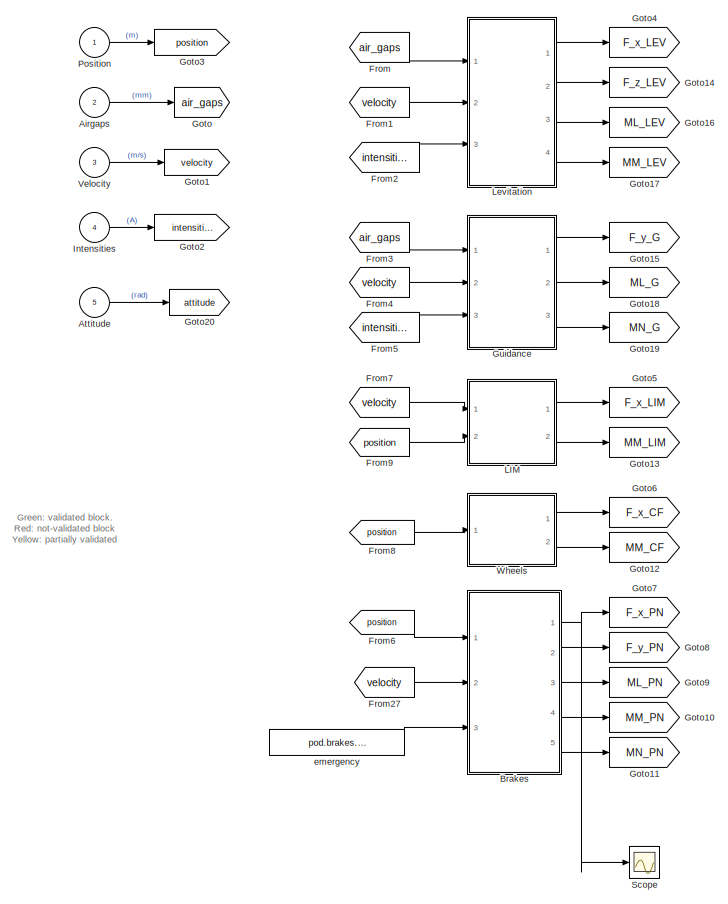
[diagram: Non-linear 6 DOF model/H7 Pod Dynamic model - part 1/2, left side, full height]
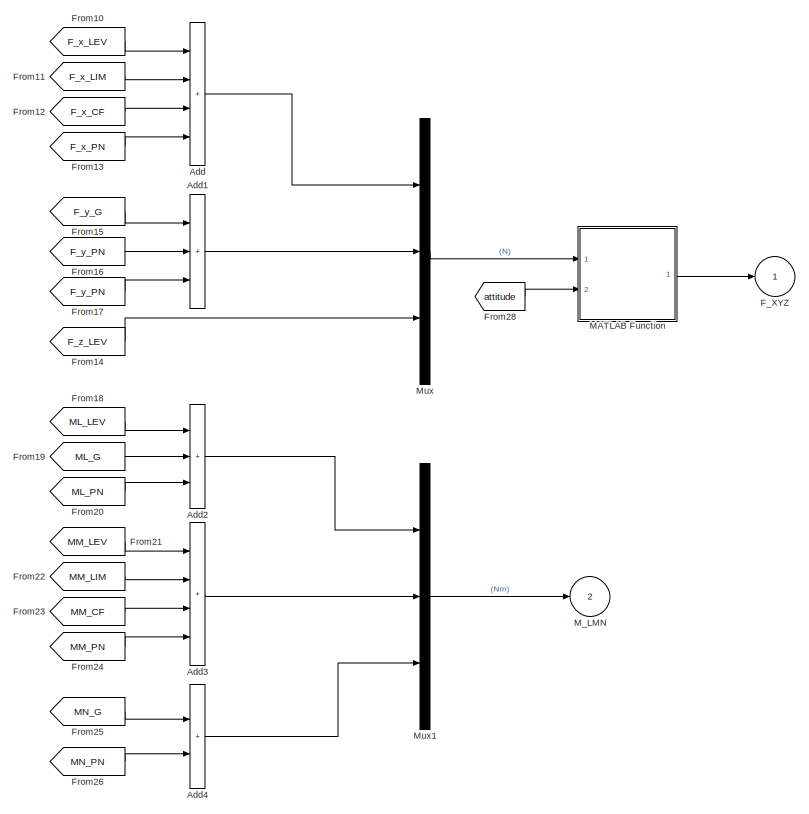
[diagram: Non-linear 6 DOF model/H7 Pod Dynamic model - part 2/2, right side, full height]
BLOCK [SubSystem] Non-linear 6 DOF model/H7 Pod Dynamic model
  AncestorBlock = libH7/H7 Pod Dynamic model
  Ports = [5, 2]
  RequestExecContextInheritance = off
BLOCK [Sum] Non-linear 6 DOF model/H7 Pod Dynamic model/Add
  IconShape = rectangular
  Inputs = ++++
  Ports = [4, 1]
BLOCK [Sum] Non-linear 6 DOF model/H7 Pod Dynamic model/Add1
  IconShape = rectangular
  Inputs = +++
  Ports = [3, 1]
BLOCK [Sum] Non-linear 6 DOF model/H7 Pod Dynamic model/Add2
  IconShape = rectangular
  Inputs = +++
  Ports = [3, 1]
BLOCK [Sum] Non-linear 6 DOF model/H7 Pod Dynamic model/Add3
  IconShape = rectangular
  Inputs = ++++
  Ports = [4, 1]
BLOCK [Sum] Non-linear 6 DOF model/H7 Pod Dynamic model/Add4
  IconShape = rectangular
  Ports = [2, 1]
BLOCK [Inport] Non-linear 6 DOF model/H7 Pod Dynamic model/Airgaps
  Port = 2
BLOCK [Inport] Non-linear 6 DOF model/H7 Pod Dynamic model/Attitude
  Port = 5
BLOCK [SubSystem] Non-linear 6 DOF model/H7 Pod Dynamic model/Brakes
  Ports = [3, 5]
  RequestExecContextInheritance = off
BLOCK [Sum] Non-linear 6 DOF model/H7 Pod Dynamic model/Brakes/Add
  IconShape = rectangular
  Inputs = ++++
  Ports = [4, 1]
BLOCK [Sum] Non-linear 6 DOF model/H7 Pod Dynamic model/Brakes/Add1
  IconShape = rectangular
  Ports = [2, 1]
BLOCK [Sum] Non-linear 6 DOF model/H7 Pod Dynamic model/Brakes/Add2
  IconShape = rectangular
  Ports = [2, 1]
BLOCK [Sum] Non-linear 6 DOF model/H7 Pod Dynamic model/Brakes/Add3
  IconShape = rectangular
  Inputs = +-
  Ports = [2, 1]
BLOCK [Sum] Non-linear 6 DOF model/H7 Pod Dynamic model/Brakes/Add4
  IconShape = rectangular
  Inputs = ++--
  Ports = [4, 1]
BLOCK [Sum] Non-linear 6 DOF model/H7 Pod Dynamic model/Brakes/Add5
  IconShape = rectangular
  Inputs = ++--
  Ports = [4, 1]
BLOCK [Sum] Non-linear 6 DOF model/H7 Pod Dynamic model/Brakes/Add6
  IconShape = rectangular
  Ports = [2, 1]
BLOCK [Demux] Non-linear 6 DOF model/H7 Pod Dynamic model/Brakes/Demux
  Ports = [1, 4]
BLOCK [Demux] Non-linear 6 DOF model/H7 Pod Dynamic model/Brakes/Demux1
  Ports = [1, 4]
BLOCK [Demux] Non-linear 6 DOF model/H7 Pod Dynamic model/Brakes/Demux2
  Outputs = 3
  Ports = [1, 3]
BLOCK [Demux] Non-linear 6 DOF model/H7 Pod Dynamic model/Brakes/Demux3
  Outputs = 3
  Ports = [1, 3]
BLOCK [Inport] Non-linear 6 DOF model/H7 Pod Dynamic model/Brakes/Emergency
  Port = 3
BLOCK [Gain] Non-linear 6 DOF model/H7 Pod Dynamic model/Brakes/Functionality gains (0, 1)
  Gain = pod.brakes.working_actuators(4)
BLOCK [Gain] Non-linear 6 DOF model/H7 Pod Dynamic model/Brakes/Functionality gains (0,1)
  Gain = pod.brakes.working_actuators(4)
BLOCK [Outport] Non-linear 6 DOF model/H7 Pod Dynamic model/Brakes/Fx
BLOCK [Outport] Non-linear 6 DOF model/H7 Pod Dynamic model/Brakes/Fy
  Port = 2
BLOCK [Gain] Non-linear 6 DOF model/H7 Pod Dynamic model/Brakes/Gain
  Gain = pod.brakes.working_actuators(1)
BLOCK [Gain] Non-linear 6 DOF model/H7 Pod Dynamic model/Brakes/Gain1
  Gain = pod.brakes.working_actuators(2)
BLOCK [Gain] Non-linear 6 DOF model/H7 Pod Dynamic model/Brakes/Gain2
  Gain = pod.brakes.working_actuators(3)
BLOCK [Gain] Non-linear 6 DOF model/H7 Pod Dynamic model/Brakes/Gain3
  Gain = pod.brakes.working_actuators(1)
BLOCK [Gain] Non-linear 6 DOF model/H7 Pod Dynamic model/Brakes/Gain4
  Gain = pod.brakes.working_actuators(2)
BLOCK [Gain] Non-linear 6 DOF model/H7 Pod Dynamic model/Brakes/Gain5
  Gain = pod.brakes.working_actuators(3)
BLOCK [Gain] Non-linear 6 DOF model/H7 Pod Dynamic model/Brakes/Gain6
  Gain = -1
BLOCK [Gain] Non-linear 6 DOF model/H7 Pod Dynamic model/Brakes/Gain7
  Gain = pod.geometry.z_PN
BLOCK [SubSystem] Non-linear 6 DOF model/H7 Pod Dynamic model/Brakes/MATLAB Function
  ErrorFcn = Stateflow.Translate.translate
  PermitHierarchicalResolution = ExplicitOnly
  Ports = [3, 2]
  RequestExecContextInheritance = off
  SFBlockType = MATLAB Function
  TreatAsAtomicUnit = on
BLOCK [Demux] Non-linear 6 DOF model/H7 Pod Dynamic model/Brakes/MATLAB Function/ Demux 
  Outputs = 1
  Ports = [1, 1]
BLOCK [S-Function] Non-linear 6 DOF model/H7 Pod Dynamic model/Brakes/MATLAB Function/ SFunction 
  EnableBusSupport = on
  FunctionName = sf_sfun
  Parameters = pod
  PortCounts = [3 3]
  Ports = [3, 3]
  SFcnIsStateOwnerBlock = off
  SFunctionDeploymentMode = off
  Tag = Stateflow S-Function 22
BLOCK [Terminator] Non-linear 6 DOF model/H7 Pod Dynamic model/Brakes/MATLAB Function/ Terminator 
BLOCK [Outport] Non-linear 6 DOF model/H7 Pod Dynamic model/Brakes/MATLAB Function/F
BLOCK [Outport] Non-linear 6 DOF model/H7 Pod Dynamic model/Brakes/MATLAB Function/F_N
  Port = 2
BLOCK [Inport] Non-linear 6 DOF model/H7 Pod Dynamic model/Brakes/MATLAB Function/emergency
  Port = 3
BLOCK [Inport] Non-linear 6 DOF model/H7 Pod Dynamic model/Brakes/MATLAB Function/velocity
  Port = 2
BLOCK [Inport] Non-linear 6 DOF model/H7 Pod Dynamic model/Brakes/MATLAB Function/x
BLOCK [Outport] Non-linear 6 DOF model/H7 Pod Dynamic model/Brakes/ML
  Port = 3
BLOCK [Outport] Non-linear 6 DOF model/H7 Pod Dynamic model/Brakes/MM
  Port = 4
BLOCK [Outport] Non-linear 6 DOF model/H7 Pod Dynamic model/Brakes/MN
  Port = 5
BLOCK [Inport] Non-linear 6 DOF model/H7 Pod Dynamic model/Brakes/Position
BLOCK [Terminator] Non-linear 6 DOF model/H7 Pod Dynamic model/Brakes/Terminator
BLOCK [Terminator] Non-linear 6 DOF model/H7 Pod Dynamic model/Brakes/Terminator1
BLOCK [Terminator] Non-linear 6 DOF model/H7 Pod Dynamic model/Brakes/Terminator2
BLOCK [Terminator] Non-linear 6 DOF model/H7 Pod Dynamic model/Brakes/Terminator3
BLOCK [Inport] Non-linear 6 DOF model/H7 Pod Dynamic model/Brakes/velocity
  Port = 2
BLOCK [Gain] Non-linear 6 DOF model/H7 Pod Dynamic model/Brakes/x_PN
  Gain = pod.geometry.x_PN
BLOCK [Gain] Non-linear 6 DOF model/H7 Pod Dynamic model/Brakes/y_PN
  Gain = pod.geometry.y_PN
BLOCK [Gain] Non-linear 6 DOF model/H7 Pod Dynamic model/Brakes/z_PN
  Gain = pod.geometry.z_PN
BLOCK [Outport] Non-linear 6 DOF model/H7 Pod Dynamic model/F_XYZ
BLOCK [From] Non-linear 6 DOF model/H7 Pod Dynamic model/From
  GotoTag = air_gaps
BLOCK [From] Non-linear 6 DOF model/H7 Pod Dynamic model/From1
  GotoTag = velocity
BLOCK [From] Non-linear 6 DOF model/H7 Pod Dynamic model/From10
  GotoTag = F_x_LEV
BLOCK [From] Non-linear 6 DOF model/H7 Pod Dynamic model/From11
  GotoTag = F_x_LIM
BLOCK [From] Non-linear 6 DOF model/H7 Pod Dynamic model/From12
  GotoTag = F_x_CF
BLOCK [From] Non-linear 6 DOF model/H7 Pod Dynamic model/From13
  GotoTag = F_x_PN
BLOCK [From] Non-linear 6 DOF model/H7 Pod Dynamic model/From14
  GotoTag = F_z_LEV
BLOCK [From] Non-linear 6 DOF model/H7 Pod Dynamic model/From15
  GotoTag = F_y_G
BLOCK [From] Non-linear 6 DOF model/H7 Pod Dynamic model/From16
  GotoTag = F_y_PN
BLOCK [From] Non-linear 6 DOF model/H7 Pod Dynamic model/From17
  GotoTag = F_y_PN
BLOCK [From] Non-linear 6 DOF model/H7 Pod Dynamic model/From18
  GotoTag = ML_LEV
BLOCK [From] Non-linear 6 DOF model/H7 Pod Dynamic model/From19
  GotoTag = ML_G
BLOCK [From] Non-linear 6 DOF model/H7 Pod Dynamic model/From2
  GotoTag = intensities
BLOCK [From] Non-linear 6 DOF model/H7 Pod Dynamic model/From20
  GotoTag = ML_PN
BLOCK [From] Non-linear 6 DOF model/H7 Pod Dynamic model/From21
  GotoTag = MM_LEV
BLOCK [From] Non-linear 6 DOF model/H7 Pod Dynamic model/From22
  GotoTag = MM_LIM
BLOCK [From] Non-linear 6 DOF model/H7 Pod Dynamic model/From23
  GotoTag = MM_CF
BLOCK [From] Non-linear 6 DOF model/H7 Pod Dynamic model/From24
  GotoTag = MM_PN
BLOCK [From] Non-linear 6 DOF model/H7 Pod Dynamic model/From25
  GotoTag = MN_G
BLOCK [From] Non-linear 6 DOF model/H7 Pod Dynamic model/From26
  GotoTag = MN_PN
BLOCK [From] Non-linear 6 DOF model/H7 Pod Dynamic model/From27
  GotoTag = velocity
BLOCK [From] Non-linear 6 DOF model/H7 Pod Dynamic model/From28
  GotoTag = attitude
BLOCK [From] Non-linear 6 DOF model/H7 Pod Dynamic model/From3
  GotoTag = air_gaps
BLOCK [From] Non-linear 6 DOF model/H7 Pod Dynamic model/From4
  GotoTag = velocity
BLOCK [From] Non-linear 6 DOF model/H7 Pod Dynamic model/From5
  GotoTag = intensities
BLOCK [From] Non-linear 6 DOF model/H7 Pod Dynamic model/From6
  GotoTag = position
BLOCK [From] Non-linear 6 DOF model/H7 Pod Dynamic model/From7
  GotoTag = velocity
BLOCK [From] Non-linear 6 DOF model/H7 Pod Dynamic model/From8
  GotoTag = position
BLOCK [From] Non-linear 6 DOF model/H7 Pod Dynamic model/From9
  GotoTag = position
BLOCK [Goto] Non-linear 6 DOF model/H7 Pod Dynamic model/Goto
  GotoTag = air_gaps
BLOCK [Goto] Non-linear 6 DOF model/H7 Pod Dynamic model/Goto1
  GotoTag = velocity
BLOCK [Goto] Non-linear 6 DOF model/H7 Pod Dynamic model/Goto10
  GotoTag = MM_PN
BLOCK [Goto] Non-linear 6 DOF model/H7 Pod Dynamic model/Goto11
  GotoTag = MN_PN
BLOCK [Goto] Non-linear 6 DOF model/H7 Pod Dynamic model/Goto12
  GotoTag = MM_CF
BLOCK [Goto] Non-linear 6 DOF model/H7 Pod Dynamic model/Goto13
  GotoTag = MM_LIM
BLOCK [Goto] Non-linear 6 DOF model/H7 Pod Dynamic model/Goto14
  GotoTag = F_z_LEV
BLOCK [Goto] Non-linear 6 DOF model/H7 Pod Dynamic model/Goto15
  GotoTag = F_y_G
BLOCK [Goto] Non-linear 6 DOF model/H7 Pod Dynamic model/Goto16
  GotoTag = ML_LEV
BLOCK [Goto] Non-linear 6 DOF model/H7 Pod Dynamic model/Goto17
  GotoTag = MM_LEV
BLOCK [Goto] Non-linear 6 DOF model/H7 Pod Dynamic model/Goto18
  GotoTag = ML_G
BLOCK [Goto] Non-linear 6 DOF model/H7 Pod Dynamic model/Goto19
  GotoTag = MN_G
BLOCK [Goto] Non-linear 6 DOF model/H7 Pod Dynamic model/Goto2
  GotoTag = intensities
BLOCK [Goto] Non-linear 6 DOF model/H7 Pod Dynamic model/Goto20
  GotoTag = attitude
BLOCK [Goto] Non-linear 6 DOF model/H7 Pod Dynamic model/Goto3
  GotoTag = position
BLOCK [Goto] Non-linear 6 DOF model/H7 Pod Dynamic model/Goto4
  GotoTag = F_x_LEV
BLOCK [Goto] Non-linear 6 DOF model/H7 Pod Dynamic model/Goto5
  GotoTag = F_x_LIM
BLOCK [Goto] Non-linear 6 DOF model/H7 Pod Dynamic model/Goto6
  GotoTag = F_x_CF
BLOCK [Goto] Non-linear 6 DOF model/H7 Pod Dynamic model/Goto7
  GotoTag = F_x_PN
BLOCK [Goto] Non-linear 6 DOF model/H7 Pod Dynamic model/Goto8
  GotoTag = F_y_PN
BLOCK [Goto] Non-linear 6 DOF model/H7 Pod Dynamic model/Goto9
  GotoTag = ML_PN
BLOCK [SubSystem] Non-linear 6 DOF model/H7 Pod Dynamic model/Guidance
  Ports = [3, 3]
  RequestExecContextInheritance = off
BLOCK [Gain] Non-linear 6 DOF model/H7 Pod Dynamic model/Guidance/- x_G
  Gain = - pod.geometry.x_G
BLOCK [Sum] Non-linear 6 DOF model/H7 Pod Dynamic model/Guidance/Add
  IconShape = rectangular
  Ports = [2, 1]
BLOCK [Sum] Non-linear 6 DOF model/H7 Pod Dynamic model/Guidance/Add1
  IconShape = rectangular
  Ports = [2, 1]
BLOCK [Sum] Non-linear 6 DOF model/H7 Pod Dynamic model/Guidance/Add2
  IconShape = rectangular
  Inputs = +-
  Ports = [2, 1]
BLOCK [Sum] Non-linear 6 DOF model/H7 Pod Dynamic model/Guidance/Add3
  IconShape = rectangular
  Ports = [2, 1]
BLOCK [Sum] Non-linear 6 DOF model/H7 Pod Dynamic model/Guidance/Add4
  IconShape = rectangular
  Ports = [2, 1]
BLOCK [Sum] Non-linear 6 DOF model/H7 Pod Dynamic model/Guidance/Add5
  IconShape = rectangular
  Inputs = +-
  Ports = [2, 1]
BLOCK [Inport] Non-linear 6 DOF model/H7 Pod Dynamic model/Guidance/Airgaps
BLOCK [Demux] Non-linear 6 DOF model/H7 Pod Dynamic model/Guidance/Demux
  Outputs = 3
  Ports = [1, 3]
BLOCK [Demux] Non-linear 6 DOF model/H7 Pod Dynamic model/Guidance/Demux1
  Ports = [1, 4]
BLOCK [Outport] Non-linear 6 DOF model/H7 Pod Dynamic model/Guidance/Fy
BLOCK [Inport] Non-linear 6 DOF model/H7 Pod Dynamic model/Guidance/Intensities
  Port = 3
BLOCK [SubSystem] Non-linear 6 DOF model/H7 Pod Dynamic model/Guidance/MATLAB Function
  ErrorFcn = Stateflow.Translate.translate
  PermitHierarchicalResolution = ExplicitOnly
  Ports = [1, 1]
  RequestExecContextInheritance = off
  SFBlockType = MATLAB Function
  TreatAsAtomicUnit = on
BLOCK [Demux] Non-linear 6 DOF model/H7 Pod Dynamic model/Guidance/MATLAB Function/ Demux 
  Outputs = 1
  Ports = [1, 1]
BLOCK [S-Function] Non-linear 6 DOF model/H7 Pod Dynamic model/Guidance/MATLAB Function/ SFunction 
  EnableBusSupport = on
  FunctionName = sf_sfun
  PortCounts = [1 2]
  Ports = [1, 2]
  SFcnIsStateOwnerBlock = off
  SFunctionDeploymentMode = off
  Tag = Stateflow S-Function 23
BLOCK [Terminator] Non-linear 6 DOF model/H7 Pod Dynamic model/Guidance/MATLAB Function/ Terminator 
BLOCK [Outport] Non-linear 6 DOF model/H7 Pod Dynamic model/Guidance/MATLAB Function/F
BLOCK [Inport] Non-linear 6 DOF model/H7 Pod Dynamic model/Guidance/MATLAB Function/v
BLOCK [SubSystem] Non-linear 6 DOF model/H7 Pod Dynamic model/Guidance/MATLAB Function1
  ErrorFcn = Stateflow.Translate.translate
  PermitHierarchicalResolution = ExplicitOnly
  Ports = [2, 1]
  RequestExecContextInheritance = off
  SFBlockType = MATLAB Function
  TreatAsAtomicUnit = on
BLOCK [Demux] Non-linear 6 DOF model/H7 Pod Dynamic model/Guidance/MATLAB Function1/ Demux 
  Outputs = 1
  Ports = [1, 1]
BLOCK [S-Function] Non-linear 6 DOF model/H7 Pod Dynamic model/Guidance/MATLAB Function1/ SFunction 
  EnableBusSupport = on
  FunctionName = sf_sfun
  Parameters = pod
  PortCounts = [2 2]
  Ports = [2, 2]
  SFcnIsStateOwnerBlock = off
  SFunctionDeploymentMode = off
  Tag = Stateflow S-Function 24
BLOCK [Terminator] Non-linear 6 DOF model/H7 Pod Dynamic model/Guidance/MATLAB Function1/ Terminator 
BLOCK [Outport] Non-linear 6 DOF model/H7 Pod Dynamic model/Guidance/MATLAB Function1/F
BLOCK [Inport] Non-linear 6 DOF model/H7 Pod Dynamic model/Guidance/MATLAB Function1/airgap
BLOCK [Inport] Non-linear 6 DOF model/H7 Pod Dynamic model/Guidance/MATLAB Function1/intensity
  Port = 2
BLOCK [Outport] Non-linear 6 DOF model/H7 Pod Dynamic model/Guidance/ML
  Port = 2
BLOCK [Outport] Non-linear 6 DOF model/H7 Pod Dynamic model/Guidance/MN
  Port = 3
BLOCK [Terminator] Non-linear 6 DOF model/H7 Pod Dynamic model/Guidance/Terminator
BLOCK [Terminator] Non-linear 6 DOF model/H7 Pod Dynamic model/Guidance/Terminator1
BLOCK [Terminator] Non-linear 6 DOF model/H7 Pod Dynamic model/Guidance/Terminator2
BLOCK [Inport] Non-linear 6 DOF model/H7 Pod Dynamic model/Guidance/Velocity
  Port = 2
BLOCK [Gain] Non-linear 6 DOF model/H7 Pod Dynamic model/Guidance/z_G
  Gain = pod.geometry.z_G
BLOCK [Inport] Non-linear 6 DOF model/H7 Pod Dynamic model/Intensities
  Port = 4
BLOCK [SubSystem] Non-linear 6 DOF model/H7 Pod Dynamic model/LIM
  Ports = [2, 2]
  RequestExecContextInheritance = off
BLOCK [Demux] Non-linear 6 DOF model/H7 Pod Dynamic model/LIM/Demux
  Outputs = 3
  Ports = [1, 3]
BLOCK [Demux] Non-linear 6 DOF model/H7 Pod Dynamic model/LIM/Demux1
  Outputs = 3
  Ports = [1, 3]
BLOCK [Outport] Non-linear 6 DOF model/H7 Pod Dynamic model/LIM/Fx
BLOCK [SubSystem] Non-linear 6 DOF model/H7 Pod Dynamic model/LIM/MATLAB Function
  ErrorFcn = Stateflow.Translate.translate
  PermitHierarchicalResolution = ExplicitOnly
  Ports = [1, 1]
  RequestExecContextInheritance = off
  SFBlockType = MATLAB Function
  TreatAsAtomicUnit = on
BLOCK [Demux] Non-linear 6 DOF model/H7 Pod Dynamic model/LIM/MATLAB Function/ Demux 
  Outputs = 1
  Ports = [1, 1]
BLOCK [S-Function] Non-linear 6 DOF model/H7 Pod Dynamic model/LIM/MATLAB Function/ SFunction 
  EnableBusSupport = on
  FunctionName = sf_sfun
  Parameters = pod
  PortCounts = [1 2]
  Ports = [1, 2]
  SFcnIsStateOwnerBlock = off
  SFunctionDeploymentMode = off
  Tag = Stateflow S-Function 25
BLOCK [Terminator] Non-linear 6 DOF model/H7 Pod Dynamic model/LIM/MATLAB Function/ Terminator 
BLOCK [Outport] Non-linear 6 DOF model/H7 Pod Dynamic model/LIM/MATLAB Function/F
BLOCK [Inport] Non-linear 6 DOF model/H7 Pod Dynamic model/LIM/MATLAB Function/v
BLOCK [SubSystem] Non-linear 6 DOF model/H7 Pod Dynamic model/LIM/MATLAB Function1
  ErrorFcn = Stateflow.Translate.translate
  PermitHierarchicalResolution = ExplicitOnly
  Ports = [2, 1]
  RequestExecContextInheritance = off
  SFBlockType = MATLAB Function
  TreatAsAtomicUnit = on
BLOCK [Demux] Non-linear 6 DOF model/H7 Pod Dynamic model/LIM/MATLAB Function1/ Demux 
  Outputs = 1
  Ports = [1, 1]
BLOCK [S-Function] Non-linear 6 DOF model/H7 Pod Dynamic model/LIM/MATLAB Function1/ SFunction 
  EnableBusSupport = on
  FunctionName = sf_sfun
  Parameters = pod
  PortCounts = [2 2]
  Ports = [2, 2]
  SFcnIsStateOwnerBlock = off
  SFunctionDeploymentMode = off
  Tag = Stateflow S-Function 26
BLOCK [Terminator] Non-linear 6 DOF model/H7 Pod Dynamic model/LIM/MATLAB Function1/ Terminator 
BLOCK [Outport] Non-linear 6 DOF model/H7 Pod Dynamic model/LIM/MATLAB Function1/sign
BLOCK [Inport] Non-linear 6 DOF model/H7 Pod Dynamic model/LIM/MATLAB Function1/v
BLOCK [Inport] Non-linear 6 DOF model/H7 Pod Dynamic model/LIM/MATLAB Function1/x
  Port = 2
BLOCK [Outport] Non-linear 6 DOF model/H7 Pod Dynamic model/LIM/MM
  Port = 2
BLOCK [Inport] Non-linear 6 DOF model/H7 Pod Dynamic model/LIM/Position
  Port = 2
BLOCK [Product] Non-linear 6 DOF model/H7 Pod Dynamic model/LIM/Product
  Ports = [2, 1]
BLOCK [Terminator] Non-linear 6 DOF model/H7 Pod Dynamic model/LIM/Terminator
BLOCK [Terminator] Non-linear 6 DOF model/H7 Pod Dynamic model/LIM/Terminator1
BLOCK [Terminator] Non-linear 6 DOF model/H7 Pod Dynamic model/LIM/Terminator2
BLOCK [Terminator] Non-linear 6 DOF model/H7 Pod Dynamic model/LIM/Terminator3
BLOCK [Inport] Non-linear 6 DOF model/H7 Pod Dynamic model/LIM/Velocity
BLOCK [Gain] Non-linear 6 DOF model/H7 Pod Dynamic model/LIM/z_LIM
  Gain = pod.geometry.z_LIM
BLOCK [SubSystem] Non-linear 6 DOF model/H7 Pod Dynamic model/Levitation
  Ports = [3, 4]
  RequestExecContextInheritance = off
BLOCK [Gain] Non-linear 6 DOF model/H7 Pod Dynamic model/Levitation/- y_LEV
  Gain = - pod.geometry.y_LEV
BLOCK [Gain] Non-linear 6 DOF model/H7 Pod Dynamic model/Levitation/6 * z_LEV
  Gain = 6 * pod.geometry.z_LEV
BLOCK [Sum] Non-linear 6 DOF model/H7 Pod Dynamic model/Levitation/Add
  IconShape = rectangular
  Inputs = +++
  Ports = [3, 1]
BLOCK [Sum] Non-linear 6 DOF model/H7 Pod Dynamic model/Levitation/Add1
  IconShape = rectangular
  Inputs = +++
  Ports = [3, 1]
BLOCK [Sum] Non-linear 6 DOF model/H7 Pod Dynamic model/Levitation/Add2
  IconShape = rectangular
  Ports = [2, 1]
BLOCK [Sum] Non-linear 6 DOF model/H7 Pod Dynamic model/Levitation/Add3
  IconShape = rectangular
  Inputs = +-
  Ports = [2, 1]
BLOCK [Sum] Non-linear 6 DOF model/H7 Pod Dynamic model/Levitation/Add4
  IconShape = rectangular
  Ports = [2, 1]
BLOCK [Sum] Non-linear 6 DOF model/H7 Pod Dynamic model/Levitation/Add5
  IconShape = rectangular
  Ports = [2, 1]
BLOCK [Sum] Non-linear 6 DOF model/H7 Pod Dynamic model/Levitation/Add6
  IconShape = rectangular
  Inputs = +-
  Ports = [2, 1]
BLOCK [Sum] Non-linear 6 DOF model/H7 Pod Dynamic model/Levitation/Add7
  IconShape = rectangular
  Ports = [2, 1]
BLOCK [Inport] Non-linear 6 DOF model/H7 Pod Dynamic model/Levitation/Airgaps
BLOCK [Demux] Non-linear 6 DOF model/H7 Pod Dynamic model/Levitation/Demux
  Outputs = 3
  Ports = [1, 3]
BLOCK [Demux] Non-linear 6 DOF model/H7 Pod Dynamic model/Levitation/Demux1
  Outputs = 6
  Ports = [1, 6]
BLOCK [From] Non-linear 6 DOF model/H7 Pod Dynamic model/Levitation/From
  GotoTag = F_LEV_X
BLOCK [Outport] Non-linear 6 DOF model/H7 Pod Dynamic model/Levitation/Fx
BLOCK [Outport] Non-linear 6 DOF model/H7 Pod Dynamic model/Levitation/Fz
  Port = 2
BLOCK [Gain] Non-linear 6 DOF model/H7 Pod Dynamic model/Levitation/Gain
  Gain = -1
BLOCK [Gain] Non-linear 6 DOF model/H7 Pod Dynamic model/Levitation/Gain1
  Gain = -6
BLOCK [Goto] Non-linear 6 DOF model/H7 Pod Dynamic model/Levitation/Goto
  GotoTag = F_LEV_X
  NameLocation = right
BLOCK [Inport] Non-linear 6 DOF model/H7 Pod Dynamic model/Levitation/Intensities
  Port = 3
BLOCK [SubSystem] Non-linear 6 DOF model/H7 Pod Dynamic model/Levitation/MATLAB Function
  ErrorFcn = Stateflow.Translate.translate
  PermitHierarchicalResolution = ExplicitOnly
  Ports = [1, 1]
  RequestExecContextInheritance = off
  SFBlockType = MATLAB Function
  TreatAsAtomicUnit = on
BLOCK [Demux] Non-linear 6 DOF model/H7 Pod Dynamic model/Levitation/MATLAB Function/ Demux 
  Outputs = 1
  Ports = [1, 1]
BLOCK [S-Function] Non-linear 6 DOF model/H7 Pod Dynamic model/Levitation/MATLAB Function/ SFunction 
  EnableBusSupport = on
  FunctionName = sf_sfun
  Parameters = pod
  PortCounts = [1 2]
  Ports = [1, 2]
  SFcnIsStateOwnerBlock = off
  SFunctionDeploymentMode = off
  Tag = Stateflow S-Function 27
BLOCK [Terminator] Non-linear 6 DOF model/H7 Pod Dynamic model/Levitation/MATLAB Function/ Terminator 
BLOCK [Outport] Non-linear 6 DOF model/H7 Pod Dynamic model/Levitation/MATLAB Function/F
BLOCK [Inport] Non-linear 6 DOF model/H7 Pod Dynamic model/Levitation/MATLAB Function/v
BLOCK [SubSystem] Non-linear 6 DOF model/H7 Pod Dynamic model/Levitation/MATLAB Function1
  ErrorFcn = Stateflow.Translate.translate
  PermitHierarchicalResolution = ExplicitOnly
  Ports = [2, 1]
  RequestExecContextInheritance = off
  SFBlockType = MATLAB Function
  TreatAsAtomicUnit = on
BLOCK [Demux] Non-linear 6 DOF model/H7 Pod Dynamic model/Levitation/MATLAB Function1/ Demux 
  Outputs = 1
  Ports = [1, 1]
BLOCK [S-Function] Non-linear 6 DOF model/H7 Pod Dynamic model/Levitation/MATLAB Function1/ SFunction 
  EnableBusSupport = on
  FunctionName = sf_sfun
  Parameters = pod
  PortCounts = [2 2]
  Ports = [2, 2]
  SFcnIsStateOwnerBlock = off
  SFunctionDeploymentMode = off
  Tag = Stateflow S-Function 28
BLOCK [Terminator] Non-linear 6 DOF model/H7 Pod Dynamic model/Levitation/MATLAB Function1/ Terminator 
BLOCK [Outport] Non-linear 6 DOF model/H7 Pod Dynamic model/Levitation/MATLAB Function1/F
BLOCK [Inport] Non-linear 6 DOF model/H7 Pod Dynamic model/Levitation/MATLAB Function1/airgap
BLOCK [Inport] Non-linear 6 DOF model/H7 Pod Dynamic model/Levitation/MATLAB Function1/intensity
  Port = 2
BLOCK [Outport] Non-linear 6 DOF model/H7 Pod Dynamic model/Levitation/ML
  Port = 3
BLOCK [Outport] Non-linear 6 DOF model/H7 Pod Dynamic model/Levitation/MM
  Port = 4
BLOCK [Terminator] Non-linear 6 DOF model/H7 Pod Dynamic model/Levitation/Terminator
BLOCK [Terminator] Non-linear 6 DOF model/H7 Pod Dynamic model/Levitation/Terminator1
BLOCK [Inport] Non-linear 6 DOF model/H7 Pod Dynamic model/Levitation/Velocity
  Port = 2
BLOCK [Gain] Non-linear 6 DOF model/H7 Pod Dynamic model/Levitation/x_LEV
  Gain = pod.geometry.x_LEV
BLOCK [SubSystem] Non-linear 6 DOF model/H7 Pod Dynamic model/MATLAB Function
  ErrorFcn = Stateflow.Translate.translate
  PermitHierarchicalResolution = ExplicitOnly
  Ports = [2, 1]
  RequestExecContextInheritance = off
  SFBlockType = MATLAB Function
  TreatAsAtomicUnit = on
BLOCK [Demux] Non-linear 6 DOF model/H7 Pod Dynamic model/MATLAB Function/ Demux 
  Outputs = 1
  Ports = [1, 1]
BLOCK [S-Function] Non-linear 6 DOF model/H7 Pod Dynamic model/MATLAB Function/ SFunction 
  EnableBusSupport = on
  FunctionName = sf_sfun
  Parameters = pod
  PortCounts = [2 2]
  Ports = [2, 2]
  SFcnIsStateOwnerBlock = off
  SFunctionDeploymentMode = off
  Tag = Stateflow S-Function 29
BLOCK [Terminator] Non-linear 6 DOF model/H7 Pod Dynamic model/MATLAB Function/ Terminator 
BLOCK [Inport] Non-linear 6 DOF model/H7 Pod Dynamic model/MATLAB Function/F
BLOCK [Outport] Non-linear 6 DOF model/H7 Pod Dynamic model/MATLAB Function/F_e
BLOCK [Inport] Non-linear 6 DOF model/H7 Pod Dynamic model/MATLAB Function/attitude
  Port = 2
BLOCK [Outport] Non-linear 6 DOF model/H7 Pod Dynamic model/M_LMN
  Port = 2
BLOCK [Mux] Non-linear 6 DOF model/H7 Pod Dynamic model/Mux
  DisplayOption = bar
  Inputs = 3
  Ports = [3, 1]
BLOCK [Mux] Non-linear 6 DOF model/H7 Pod Dynamic model/Mux1
  DisplayOption = bar
  Inputs = 3
  Ports = [3, 1]
BLOCK [Inport] Non-linear 6 DOF model/H7 Pod Dynamic model/Position
BLOCK [Scope] Non-linear 6 DOF model/H7 Pod Dynamic model/Scope
  Floating = off
  NumInputPorts = 1
  Ports = [1]
  ScopeSpecificationString = Simulink.scopes.TimeScopeBlockCfg('CurrentConfiguration', extmgr.ConfigurationSet(extmgr.Configuration('Core','General UI',true),extmgr.Configuration('Core','Source UI',true),extmgr.Configuration('Sources','WiredSimulink',true,'DataLoggingVariableName','ScopeData14'),extmgr.Configuration('Visuals','Time Domain',true,'SerializedDisplays',{struct('MinYLimReal','-1491.88937','MaxYLimReal','165.76549'...<+1388ch>
BLOCK [Inport] Non-linear 6 DOF model/H7 Pod Dynamic model/Velocity
  Port = 3
BLOCK [SubSystem] Non-linear 6 DOF model/H7 Pod Dynamic model/Wheels
  Ports = [1, 2]
  RequestExecContextInheritance = off
BLOCK [Demux] Non-linear 6 DOF model/H7 Pod Dynamic model/Wheels/Demux
  Outputs = 3
  Ports = [1, 3]
BLOCK [Outport] Non-linear 6 DOF model/H7 Pod Dynamic model/Wheels/Fx
BLOCK [SubSystem] Non-linear 6 DOF model/H7 Pod Dynamic model/Wheels/MATLAB Function
  ErrorFcn = Stateflow.Translate.translate
  PermitHierarchicalResolution = ExplicitOnly
  Ports = [1, 2]
  RequestExecContextInheritance = off
  SFBlockType = MATLAB Function
  TreatAsAtomicUnit = on
BLOCK [Demux] Non-linear 6 DOF model/H7 Pod Dynamic model/Wheels/MATLAB Function/ Demux 
  Outputs = 1
  Ports = [1, 1]
BLOCK [S-Function] Non-linear 6 DOF model/H7 Pod Dynamic model/Wheels/MATLAB Function/ SFunction 
  EnableBusSupport = on
  FunctionName = sf_sfun
  Parameters = pod
  PortCounts = [1 3]
  Ports = [1, 3]
  SFcnIsStateOwnerBlock = off
  SFunctionDeploymentMode = off
  Tag = Stateflow S-Function 30
BLOCK [Terminator] Non-linear 6 DOF model/H7 Pod Dynamic model/Wheels/MATLAB Function/ Terminator 
BLOCK [Outport] Non-linear 6 DOF model/H7 Pod Dynamic model/Wheels/MATLAB Function/F
BLOCK [Inport] Non-linear 6 DOF model/H7 Pod Dynamic model/Wheels/MATLAB Function/z
BLOCK [Outport] Non-linear 6 DOF model/H7 Pod Dynamic model/Wheels/MATLAB Function/z_CF
  Port = 2
BLOCK [Outport] Non-linear 6 DOF model/H7 Pod Dynamic model/Wheels/MM
  Port = 2
BLOCK [Inport] Non-linear 6 DOF model/H7 Pod Dynamic model/Wheels/Position
BLOCK [Product] Non-linear 6 DOF model/H7 Pod Dynamic model/Wheels/Product
  Ports = [2, 1]
BLOCK [Terminator] Non-linear 6 DOF model/H7 Pod Dynamic model/Wheels/Terminator
BLOCK [Terminator] Non-linear 6 DOF model/H7 Pod Dynamic model/Wheels/Terminator1
BLOCK [Constant] Non-linear 6 DOF model/H7 Pod Dynamic model/emergency
  Value = pod.brakes.emergency_flag
BLOCK [Inport] Non-linear 6 DOF model/Intensities
  Port = 2
BLOCK [Mux] Non-linear 6 DOF model/Mux
  DisplayOption = bar
  Inputs = 3
  Ports = [3, 1]
BLOCK [Outport] Non-linear 6 DOF model/Position (absolute coordinate system)
  Port = 2
BLOCK [Saturate] Non-linear 6 DOF model/Saturation
  LowerLimit = 0
  UpperLimit = 20
BLOCK [Saturate] Non-linear 6 DOF model/Saturation1
  LowerLimit = -0.002
  UpperLimit = 0.002
BLOCK [Saturate] Non-linear 6 DOF model/Saturation2
  LowerLimit = -0.011
  UpperLimit = 0
BLOCK [Terminator] Non-linear 6 DOF model/Terminator1
BLOCK [Terminator] Non-linear 6 DOF model/Terminator2
BLOCK [Terminator] Non-linear 6 DOF model/Terminator3
BLOCK [Outport] Non-linear 6 DOF model/Velocity (absolute coordinate system)
BLOCK [Scope] Scope
  Commented = on
  Floating = off
  NumInputPorts = 1
  Ports = [1]
  ScopeSpecificationString = Simulink.scopes.TimeScopeBlockCfg('CurrentConfiguration', extmgr.ConfigurationSet(extmgr.Configuration('Core','General UI',true),extmgr.Configuration('Core','Source UI',true),extmgr.Configuration('Sources','WiredSimulink',true,'DataLoggingVariableName','ScopeData9'),extmgr.Configuration('Visuals','Time Domain',true,'SerializedDisplays',{struct('MinYLimReal','-13.8809','MaxYLimReal','8.03151','YLab...<+1471ch>
BLOCK [Scope] Scope1
  Commented = on
  Floating = off
  NumInputPorts = 1
  Ports = [1]
  ScopeSpecificationString = Simulink.scopes.TimeScopeBlockCfg('CurrentConfiguration', extmgr.ConfigurationSet(extmgr.Configuration('Core','General UI',true),extmgr.Configuration('Core','Source UI',true),extmgr.Configuration('Sources','WiredSimulink',true,'DataLoggingVariableName','ScopeData10'),extmgr.Configuration('Visuals','Time Domain',true,'SerializedDisplays',{struct('MinYLimReal','-0.03216','MaxYLimReal','0.00602','YLa...<+1491ch>
BLOCK [Scope] Scope2
  Commented = on
  Floating = off
  NumInputPorts = 1
  Ports = [1]
  ScopeSpecificationString = Simulink.scopes.TimeScopeBlockCfg('CurrentConfiguration', extmgr.ConfigurationSet(extmgr.Configuration('Core','General UI',true),extmgr.Configuration('Core','Source UI',true),extmgr.Configuration('Sources','WiredSimulink',true,'DataLoggingVariableName','ScopeData11'),extmgr.Configuration('Visuals','Time Domain',true,'SerializedDisplays',{struct('MinYLimReal','-14.91941','MaxYLimReal','4.1836','YLa...<+1474ch>
BLOCK [Scope] Scope3
  Commented = on
  Floating = off
  NumInputPorts = 1
  Ports = [1]
  ScopeSpecificationString = Simulink.scopes.TimeScopeBlockCfg('CurrentConfiguration', extmgr.ConfigurationSet(extmgr.Configuration('Core','General UI',true),extmgr.Configuration('Core','Source UI',true),extmgr.Configuration('Sources','WiredSimulink',true,'DataLoggingVariableName','ScopeData12'),extmgr.Configuration('Visuals','Time Domain',true,'SerializedDisplays',{struct('MinYLimReal','-0.0000005','MaxYLimReal','0.0000044',...<+1460ch>
BLOCK [Scope] Scope4
  Commented = on
  Floating = off
  NumInputPorts = 1
  Ports = [1]
  ScopeSpecificationString = Simulink.scopes.TimeScopeBlockCfg('CurrentConfiguration', extmgr.ConfigurationSet(extmgr.Configuration('Core','General UI',true),extmgr.Configuration('Core','Source UI',true),extmgr.Configuration('Sources','WiredSimulink',true,'DataLoggingVariableName','ScopeData13'),extmgr.Configuration('Visuals','Time Domain',true,'SerializedDisplays',{struct('MinYLimReal','-0.0000001','MaxYLimReal','0.0000012',...<+1460ch>
BLOCK [SubSystem] Wheels validation
  Commented = on
  Ports = []
  RequestExecContextInheritance = off
BLOCK [Sum] Wheels validation/Add
  IconShape = rectangular
  Ports = [2, 1]
BLOCK [From] Wheels validation/From
  GotoTag = z
BLOCK [Goto] Wheels validation/Goto
  GotoTag = z
BLOCK [Mux] Wheels validation/Mux
  DisplayOption = bar
  Inputs = 3
  Ports = [3, 1]
BLOCK [Scope] Wheels validation/Scope
  Floating = off
  NumInputPorts = 1
  Ports = [1]
  ScopeSpecificationString = Simulink.scopes.TimeScopeBlockCfg('CurrentConfiguration', extmgr.ConfigurationSet(extmgr.Configuration('Core','General UI',true),extmgr.Configuration('Core','Source UI',true),extmgr.Configuration('Sources','WiredSimulink',true,'DataLoggingVariableName','ScopeData1'),extmgr.Configuration('Visuals','Time Domain',true,'SerializedDisplays',{struct('MinYLimReal','-5.36053','MaxYLimReal','48.24475','YLa...<+1371ch>
BLOCK [Scope] Wheels validation/Scope1
  Floating = off
  NumInputPorts = 1
  Ports = [1]
  ScopeSpecificationString = Simulink.scopes.TimeScopeBlockCfg('CurrentConfiguration', extmgr.ConfigurationSet(extmgr.Configuration('Core','General UI',true),extmgr.Configuration('Core','Source UI',true),extmgr.Configuration('Sources','WiredSimulink',true,'DataLoggingVariableName','ScopeData2'),extmgr.Configuration('Visuals','Time Domain',true,'SerializedDisplays',{struct('MinYLimReal','-18.76859','MaxYLimReal','15.31462','YL...<+1373ch>
BLOCK [Scope] Wheels validation/Scope2
  Floating = off
  NameLocation = left
  NumInputPorts = 1
  Ports = [1]
  ScopeSpecificationString = Simulink.scopes.TimeScopeBlockCfg('CurrentConfiguration', extmgr.ConfigurationSet(extmgr.Configuration('Core','General UI',true),extmgr.Configuration('Core','Source UI',true),extmgr.Configuration('Sources','WiredSimulink',true,'DataLoggingVariableName','ScopeData3'),extmgr.Configuration('Visuals','Time Domain',true,'SerializedDisplays',{struct('MinYLimReal','-1.375','MaxYLimReal','12.375','YLabelR...<+1354ch>
BLOCK [Step] Wheels validation/Step
  After = 5
  SampleTime = 0
BLOCK [Step] Wheels validation/Step1
  After = pod.general.z_range - 5
  SampleTime = 0
  Time = 2
BLOCK [ToWorkspace] Wheels validation/To Workspace
  FixptAsFi = on
  MaxDataPoints = inf
  NameLocation = right
  Ports = [1]
  SampleTime = -1
  SaveFormat = Timeseries
  VariableName = z
BLOCK [ToWorkspace] Wheels validation/To Workspace1
  FixptAsFi = on
  MaxDataPoints = inf
  NameLocation = right
  Ports = [1]
  SampleTime = -1
  SaveFormat = Timeseries
  VariableName = F_x
BLOCK [ToWorkspace] Wheels validation/To Workspace2
  FixptAsFi = on
  MaxDataPoints = inf
  NameLocation = right
  Ports = [1]
  SampleTime = -1
  SaveFormat = Timeseries
  VariableName = MM
BLOCK [SubSystem] Wheels validation/Wheels
  Ports = [1, 2]
  RequestExecContextInheritance = off
BLOCK [Demux] Wheels validation/Wheels/Demux
  Outputs = 3
  Ports = [1, 3]
BLOCK [Outport] Wheels validation/Wheels/Fx
BLOCK [SubSystem] Wheels validation/Wheels/MATLAB Function
  ErrorFcn = Stateflow.Translate.translate
  PermitHierarchicalResolution = ExplicitOnly
  Ports = [1, 2]
  RequestExecContextInheritance = off
  SFBlockType = MATLAB Function
  TreatAsAtomicUnit = on
BLOCK [Demux] Wheels validation/Wheels/MATLAB Function/ Demux 
  Outputs = 1
  Ports = [1, 1]
BLOCK [S-Function] Wheels validation/Wheels/MATLAB Function/ SFunction 
  EnableBusSupport = on
  FunctionName = sf_sfun
  Parameters = pod
  PortCounts = [1 3]
  Ports = [1, 3]
  SFcnIsStateOwnerBlock = off
  SFunctionDeploymentMode = off
  Tag = Stateflow S-Function 12
BLOCK [Terminator] Wheels validation/Wheels/MATLAB Function/ Terminator 
BLOCK [Outport] Wheels validation/Wheels/MATLAB Function/F
BLOCK [Inport] Wheels validation/Wheels/MATLAB Function/z
BLOCK [Outport] Wheels validation/Wheels/MATLAB Function/z_CF
  Port = 2
BLOCK [Outport] Wheels validation/Wheels/MM
  Port = 2
BLOCK [Inport] Wheels validation/Wheels/Position
BLOCK [Product] Wheels validation/Wheels/Product
  Ports = [2, 1]
BLOCK [Terminator] Wheels validation/Wheels/Terminator
BLOCK [Terminator] Wheels validation/Wheels/Terminator1
ANNOTATION (root): ojo! la inercia de este bloque está modificada para simular condiciones ficticias con un giro muy pequeño
ANNOTATION Brakes validation/Brakes: To study the behaviour if one or more actuators malfunction, these gains can be set to 0 in the MATLAB workspace
ANNOTATION EMS validation/Guidance: (Assumed to be 0 until more data is available)
ANNOTATION LIM validation: Simple dynamics
ANNOTATION LIM validation/LIM: Note that it is assumed that the transversal forces are compensated
ANNOTATION Non-linear 6 DOF model/H7 Pod Dynamic model: Green: validated block. Red: not-validated block Yellow: partially validated
ANNOTATION Non-linear 6 DOF model/H7 Pod Dynamic model/Brakes: To study the behaviour if one or more actuators malfunction, these gains can be set to 0 in the MATLAB workspace
ANNOTATION Non-linear 6 DOF model/H7 Pod Dynamic model/Guidance: (Assumed to be 0 until more data is available)
ANNOTATION Non-linear 6 DOF model/H7 Pod Dynamic model/LIM: Note that it is assumed that the transversal forces are compensated
NET Brakes validation/Add:1 -> Brakes validation/Divide:1, Brakes validation/Scope2:3, Brakes validation/To Workspace7:1
LINE Brakes validation/Brakes/Add1:1 -> Brakes validation/Brakes/Add3:1
LINE Brakes validation/Brakes/Add2:1 -> Brakes validation/Brakes/Add3:2
NET Brakes validation/Brakes/Add3:1 -> Brakes validation/Brakes/Fy:1, Brakes validation/Brakes/z_PN:1
LINE Brakes validation/Brakes/Add4:1 -> Brakes validation/Brakes/y_PN:1
LINE Brakes validation/Brakes/Add5:1 -> Brakes validation/Brakes/x_PN:1
LINE Brakes validation/Brakes/Add6:1 -> Brakes validation/Brakes/MN:1
NET Brakes validation/Brakes/Add:1 -> Brakes validation/Brakes/Gain6:1, Brakes validation/Brakes/Gain7:1
LINE Brakes validation/Brakes/Demux1:1 -> Brakes validation/Brakes/Gain3:1
LINE Brakes validation/Brakes/Demux1:2 -> Brakes validation/Brakes/Gain4:1
LINE Brakes validation/Brakes/Demux1:3 -> Brakes validation/Brakes/Gain5:1
LINE Brakes validation/Brakes/Demux1:4 -> Brakes validation/Brakes/Functionality gains (0, 1):1
LINE Brakes validation/Brakes/Demux2:1 -> Brakes validation/Brakes/MATLAB Function:1
LINE Brakes validation/Brakes/Demux2:2 -> Brakes validation/Brakes/Terminator:1
LINE Brakes validation/Brakes/Demux2:3 -> Brakes validation/Brakes/Terminator1:1
LINE Brakes validation/Brakes/Demux3:1 -> Brakes validation/Brakes/MATLAB Function:2
LINE Brakes validation/Brakes/Demux3:2 -> Brakes validation/Brakes/Terminator2:1
LINE Brakes validation/Brakes/Demux3:3 -> Brakes validation/Brakes/Terminator3:1
LINE Brakes validation/Brakes/Demux:1 -> Brakes validation/Brakes/Gain:1
LINE Brakes validation/Brakes/Demux:2 -> Brakes validation/Brakes/Gain1:1
LINE Brakes validation/Brakes/Demux:3 -> Brakes validation/Brakes/Gain2:1
LINE Brakes validation/Brakes/Demux:4 -> Brakes validation/Brakes/Functionality gains (0,1):1
LINE Brakes validation/Brakes/Emergency:1 -> Brakes validation/Brakes/MATLAB Function:3
NET Brakes validation/Brakes/Functionality gains (0, 1):1 -> Brakes validation/Brakes/Add2:2, Brakes validation/Brakes/Add5:4
NET Brakes validation/Brakes/Functionality gains (0,1):1 -> Brakes validation/Brakes/Add4:4, Brakes validation/Brakes/Add:4
NET Brakes validation/Brakes/Gain1:1 -> Brakes validation/Brakes/Add4:2, Brakes validation/Brakes/Add:2
NET Brakes validation/Brakes/Gain2:1 -> Brakes validation/Brakes/Add4:3, Brakes validation/Brakes/Add:3
NET Brakes validation/Brakes/Gain3:1 -> Brakes validation/Brakes/Add1:1, Brakes validation/Brakes/Add5:3
NET Brakes validation/Brakes/Gain4:1 -> Brakes validation/Brakes/Add1:2, Brakes validation/Brakes/Add5:1
NET Brakes validation/Brakes/Gain5:1 -> Brakes validation/Brakes/Add2:1, Brakes validation/Brakes/Add5:2
LINE Brakes validation/Brakes/Gain6:1 -> Brakes validation/Brakes/Fx:1
LINE Brakes validation/Brakes/Gain7:1 -> Brakes validation/Brakes/MM:1
NET Brakes validation/Brakes/Gain:1 -> Brakes validation/Brakes/Add4:1, Brakes validation/Brakes/Add:1
LINE Brakes validation/Brakes/MATLAB Function:1 -> Brakes validation/Brakes/Demux:1
LINE Brakes validation/Brakes/MATLAB Function:2 -> Brakes validation/Brakes/Demux1:1
LINE Brakes validation/Brakes/Position:1 -> Brakes validation/Brakes/Demux2:1
LINE Brakes validation/Brakes/velocity:1 -> Brakes validation/Brakes/Demux3:1
LINE Brakes validation/Brakes/x_PN:1 -> Brakes validation/Brakes/Add6:2
LINE Brakes validation/Brakes/y_PN:1 -> Brakes validation/Brakes/Add6:1
LINE Brakes validation/Brakes/z_PN:1 -> Brakes validation/Brakes/ML:1
NET Brakes validation/Brakes:1 -> Brakes validation/Goto:1, Brakes validation/Scope1:1, Brakes validation/To Workspace:1
NET Brakes validation/Brakes:2 -> Brakes validation/Scope1:2, Brakes validation/To Workspace1:1
NET Brakes validation/Brakes:3 -> Brakes validation/Mux2:1, Brakes validation/Scope:1
NET Brakes validation/Brakes:4 -> Brakes validation/Mux2:2, Brakes validation/Scope:2
NET Brakes validation/Brakes:5 -> Brakes validation/Mux2:3, Brakes validation/Scope:3
LINE Brakes validation/Constant:1 -> Brakes validation/Divide:2
LINE Brakes validation/Divide:1 -> Brakes validation/Integrator:1
NET Brakes validation/From1:1 -> Brakes validation/Add:2, Brakes validation/Scope2:1
NET Brakes validation/From2:1 -> Brakes validation/Mux1:1, Brakes validation/Mux1:2, Brakes validation/Mux1:3
LINE Brakes validation/From3:1 -> Brakes validation/To Workspace6:1
NET Brakes validation/From:1 -> Brakes validation/Mux:1, Brakes validation/Mux:2, Brakes validation/Mux:3
NET Brakes validation/Integrator1:1 -> Brakes validation/Goto1:1, Brakes validation/Scope3:1, Brakes validation/To Workspace5:1
NET Brakes validation/Integrator:1 -> Brakes validation/Goto2:1, Brakes validation/Integrator1:1, Brakes validation/Scope4:1
LINE Brakes validation/Mux1:1 -> Brakes validation/Brakes:2
LINE Brakes validation/Mux2:1 -> Brakes validation/To Workspace2:1
LINE Brakes validation/Mux:1 -> Brakes validation/Brakes:1
LINE Brakes validation/emergency:1 -> Brakes validation/Brakes:3
NET Brakes validation/impulse force:1 -> Brakes validation/Add:1, Brakes validation/Scope2:2
NET Constant1:1 -> Mux2:1, Mux2:10, Mux2:2, Mux2:3, Mux2:4, Mux2:5, Mux2:6, Mux2:7, Mux2:8, Mux2:9
NET Constant:1 -> Mux1:1, Mux1:10, Mux1:2, Mux1:3, Mux1:4, Mux1:5, Mux1:6, Mux1:7, Mux1:8, Mux1:9
NET EMS validation/Constant2:1 -> EMS validation/Mux:1, EMS validation/Mux:2, EMS validation/Mux:3
LINE EMS validation/Constant:1 -> EMS validation/MATLAB function:1
LINE EMS validation/Guidance/- x_G:1 -> EMS validation/Guidance/MN:1
LINE EMS validation/Guidance/Add1:1 -> EMS validation/Guidance/Add2:2
NET EMS validation/Guidance/Add2:1 -> EMS validation/Guidance/Fy:1, EMS validation/Guidance/Scope1:1, EMS validation/Guidance/z_G:1
LINE EMS validation/Guidance/Add3:1 -> EMS validation/Guidance/Add5:1
LINE EMS validation/Guidance/Add4:1 -> EMS validation/Guidance/Add5:2
LINE EMS validation/Guidance/Add5:1 -> EMS validation/Guidance/- x_G:1
LINE EMS validation/Guidance/Add:1 -> EMS validation/Guidance/Add2:1
LINE EMS validation/Guidance/Airgaps:1 -> EMS validation/Guidance/MATLAB Function1:1
NET EMS validation/Guidance/Demux1:1 -> EMS validation/Guidance/Add3:1, EMS validation/Guidance/Add:1
NET EMS validation/Guidance/Demux1:2 -> EMS validation/Guidance/Add4:1, EMS validation/Guidance/Add:2
NET EMS validation/Guidance/Demux1:3 -> EMS validation/Guidance/Add1:1, EMS validation/Guidance/Add4:2
NET EMS validation/Guidance/Demux1:4 -> EMS validation/Guidance/Add1:2, EMS validation/Guidance/Add3:2
LINE EMS validation/Guidance/Demux:1 -> EMS validation/Guidance/MATLAB Function:1
LINE EMS validation/Guidance/Demux:2 -> EMS validation/Guidance/Terminator:1
LINE EMS validation/Guidance/Demux:3 -> EMS validation/Guidance/Terminator1:1
NET EMS validation/Guidance/Intensities:1 -> EMS validation/Guidance/MATLAB Function1:2, EMS validation/Guidance/Scope2:1
NET EMS validation/Guidance/MATLAB Function1:1 -> EMS validation/Guidance/Demux1:1, EMS validation/Guidance/Scope:1
LINE EMS validation/Guidance/MATLAB Function:1 -> EMS validation/Guidance/Terminator2:1
LINE EMS validation/Guidance/Velocity:1 -> EMS validation/Guidance/Demux:1
LINE EMS validation/Guidance/z_G:1 -> EMS validation/Guidance/ML:1
NET EMS validation/Guidance:1 -> EMS validation/Scope1:1, EMS validation/To Workspace:1
NET EMS validation/Guidance:2 -> EMS validation/Scope:2, EMS validation/To Workspace1:1
NET EMS validation/Guidance:3 -> EMS validation/Scope:1, EMS validation/To Workspace2:1
NET EMS validation/MATLAB Function1:1 -> EMS validation/Guidance:3, EMS validation/Scope2:1
LINE EMS validation/MATLAB function:1 -> EMS validation/Guidance:1
LINE EMS validation/Mux:1 -> EMS validation/Guidance:2
LINE EMS validation/Step1:1 -> EMS validation/MATLAB Function1:2
NET EMS validation/Step:1 -> EMS validation/MATLAB Function1:1, EMS validation/To Workspace3:1
LINE HEMS validation/Constant1:1 -> HEMS validation/MATLAB Function1:1
NET HEMS validation/Constant2:1 -> HEMS validation/Mux:1, HEMS validation/Mux:2, HEMS validation/Mux:3
LINE HEMS validation/Constant:1 -> HEMS validation/MATLAB unction3:1
LINE HEMS validation/Levitation/- y_LEV:1 -> HEMS validation/Levitation/ML:1
LINE HEMS validation/Levitation/6 * z_LEV:1 -> HEMS validation/Levitation/Add7:2
NET HEMS validation/Levitation/Add1:1 -> HEMS validation/Levitation/Add2:2, HEMS validation/Levitation/Add3:2
LINE HEMS validation/Levitation/Add2:1 -> HEMS validation/Levitation/Gain:1
LINE HEMS validation/Levitation/Add3:1 -> HEMS validation/Levitation/- y_LEV:1
LINE HEMS validation/Levitation/Add4:1 -> HEMS validation/Levitation/Add6:1
LINE HEMS validation/Levitation/Add5:1 -> HEMS validation/Levitation/Add6:2
LINE HEMS validation/Levitation/Add6:1 -> HEMS validation/Levitation/x_LEV:1
LINE HEMS validation/Levitation/Add7:1 -> HEMS validation/Levitation/MM:1
NET HEMS validation/Levitation/Add:1 -> HEMS validation/Levitation/Add2:1, HEMS validation/Levitation/Add3:1
LINE HEMS validation/Levitation/Airgaps:1 -> HEMS validation/Levitation/MATLAB Function1:1
NET HEMS validation/Levitation/Demux1:1 -> HEMS validation/Levitation/Add4:1, HEMS validation/Levitation/Add:1
LINE HEMS validation/Levitation/Demux1:2 -> HEMS validation/Levitation/Add:2
NET HEMS validation/Levitation/Demux1:3 -> HEMS validation/Levitation/Add5:1, HEMS validation/Levitation/Add:3
NET HEMS validation/Levitation/Demux1:4 -> HEMS validation/Levitation/Add1:1, HEMS validation/Levitation/Add4:2
LINE HEMS validation/Levitation/Demux1:5 -> HEMS validation/Levitation/Add1:2
NET HEMS validation/Levitation/Demux1:6 -> HEMS validation/Levitation/Add1:3, HEMS validation/Levitation/Add5:2
LINE HEMS validation/Levitation/Demux:1 -> HEMS validation/Levitation/MATLAB Function:1
LINE HEMS validation/Levitation/Demux:2 -> HEMS validation/Levitation/Terminator:1
LINE HEMS validation/Levitation/Demux:3 -> HEMS validation/Levitation/Terminator1:1
LINE HEMS validation/Levitation/From:1 -> HEMS validation/Levitation/6 * z_LEV:1
LINE HEMS validation/Levitation/Gain1:1 -> HEMS validation/Levitation/Fx:1
LINE HEMS validation/Levitation/Gain:1 -> HEMS validation/Levitation/Fz:1
LINE HEMS validation/Levitation/Intensities:1 -> HEMS validation/Levitation/MATLAB Function1:2
LINE HEMS validation/Levitation/MATLAB Function1:1 -> HEMS validation/Levitation/Demux1:1
NET HEMS validation/Levitation/MATLAB Function:1 -> HEMS validation/Levitation/Gain1:1, HEMS validation/Levitation/Goto:1
LINE HEMS validation/Levitation/Velocity:1 -> HEMS validation/Levitation/Demux:1
LINE HEMS validation/Levitation/x_LEV:1 -> HEMS validation/Levitation/Add7:1
NET HEMS validation/Levitation:1 -> HEMS validation/Scope:2, HEMS validation/To Workspace:1
NET HEMS validation/Levitation:2 -> HEMS validation/Scope:1, HEMS validation/To Workspace1:1
NET HEMS validation/Levitation:3 -> HEMS validation/Scope1:2, HEMS validation/To Workspace2:1
NET HEMS validation/Levitation:4 -> HEMS validation/Scope1:1, HEMS validation/To Workspace3:1
NET HEMS validation/MATLAB Function1:1 -> HEMS validation/Levitation:3, HEMS validation/Scope2:1
LINE HEMS validation/MATLAB unction3:1 -> HEMS validation/Levitation:1
LINE HEMS validation/Mux:1 -> HEMS validation/Levitation:2
LINE LIM validation/Constant1:1 -> LIM validation/Divide1:2
LINE LIM validation/Divide1:1 -> LIM validation/Integrator2:1
LINE LIM validation/From2:1 -> LIM validation/Divide1:1
LINE LIM validation/From7:1 -> LIM validation/Mux:1
LINE LIM validation/From9:1 -> LIM validation/Mux1:1
LINE LIM validation/Ground1:1 -> LIM validation/Mux:3
LINE LIM validation/Ground2:1 -> LIM validation/Mux1:2
LINE LIM validation/Ground3:1 -> LIM validation/Mux1:3
LINE LIM validation/Ground:1 -> LIM validation/Mux:2
NET LIM validation/Integrator2:1 -> LIM validation/Goto:1, LIM validation/Integrator3:1, LIM validation/To Workspace1:1
NET LIM validation/Integrator3:1 -> LIM validation/Goto1:1, LIM validation/To Workspace2:1
LINE LIM validation/LIM/Demux1:1 -> LIM validation/LIM/MATLAB Function1:2
LINE LIM validation/LIM/Demux1:2 -> LIM validation/LIM/Terminator2:1
LINE LIM validation/LIM/Demux1:3 -> LIM validation/LIM/Terminator3:1
NET LIM validation/LIM/Demux:1 -> LIM validation/LIM/MATLAB Function1:1, LIM validation/LIM/MATLAB Function:1
LINE LIM validation/LIM/Demux:2 -> LIM validation/LIM/Terminator:1
LINE LIM validation/LIM/Demux:3 -> LIM validation/LIM/Terminator1:1
LINE LIM validation/LIM/MATLAB Function1:1 -> LIM validation/LIM/Product:2
LINE LIM validation/LIM/MATLAB Function:1 -> LIM validation/LIM/Product:1
LINE LIM validation/LIM/Position:1 -> LIM validation/LIM/Demux1:1
NET LIM validation/LIM/Product:1 -> LIM validation/LIM/Fx:1, LIM validation/LIM/z_LIM:1
LINE LIM validation/LIM/Velocity:1 -> LIM validation/LIM/Demux:1
LINE LIM validation/LIM/z_LIM:1 -> LIM validation/LIM/MM:1
NET LIM validation/LIM:1 -> LIM validation/Goto2:1, LIM validation/To Workspace:1
LINE LIM validation/LIM:2 -> LIM validation/Terminator:1
LINE LIM validation/Mux1:1 -> LIM validation/LIM:2
LINE LIM validation/Mux:1 -> LIM validation/LIM:1
LINE Mux1:1 -> Non-linear 6 DOF model:1
LINE Mux2:1 -> Non-linear 6 DOF model:2
LINE Non-linear 6 DOF model:1 -> Scope:1
LINE Non-linear 6 DOF model:2 -> Scope1:1
LINE Non-linear 6 DOF model:3 -> Scope2:1
LINE Non-linear 6 DOF model:4 -> Scope3:1
LINE Non-linear 6 DOF model:5 -> Scope4:1
NET Wheels validation/Add:1 -> Wheels validation/Goto:1, Wheels validation/Scope2:1
NET Wheels validation/From:1 -> Wheels validation/Mux:1, Wheels validation/Mux:2, Wheels validation/Mux:3, Wheels validation/To Workspace:1
LINE Wheels validation/Mux:1 -> Wheels validation/Wheels:1
LINE Wheels validation/Step1:1 -> Wheels validation/Add:2
LINE Wheels validation/Step:1 -> Wheels validation/Add:1
LINE Wheels validation/Wheels/Demux:1 -> Wheels validation/Wheels/Terminator1:1
LINE Wheels validation/Wheels/Demux:2 -> Wheels validation/Wheels/Terminator:1
LINE Wheels validation/Wheels/Demux:3 -> Wheels validation/Wheels/MATLAB Function:1
NET Wheels validation/Wheels/MATLAB Function:1 -> Wheels validation/Wheels/Fx:1, Wheels validation/Wheels/Product:1
LINE Wheels validation/Wheels/MATLAB Function:2 -> Wheels validation/Wheels/Product:2
LINE Wheels validation/Wheels/Position:1 -> Wheels validation/Wheels/Demux:1
LINE Wheels validation/Wheels/Product:1 -> Wheels validation/Wheels/MM:1
NET Wheels validation/Wheels:1 -> Wheels validation/Scope:1, Wheels validation/To Workspace1:1
NET Wheels validation/Wheels:2 -> Wheels validation/Scope1:1, Wheels validation/To Workspace2:1
note: NET lines group one-source signal fan-out (src -> all destinations, sorted); 1:1 wires keep LINE
CHART Wheels validation/Wheels/MATLAB Function states=1 transitions=1
  STATE_LABEL 'eML_blk_kernel()'
  STATE_LABEL 'SCRIPT:\nfunction [F, z_CF] = rollingFriction(z, pod)\n% Computes the rolling resistance force (N) of the wheels. It distinguishes\n% 3 cases: \n%   (1) z = 0. Pod touching the ground\n%   (2) z = z_max. Pod touching the ceiling. It is assumed no current\n%   applied to the HEMS. \n%   (3) Otherwise. Pod levitating. \n% ═════════════════════════════════════════════════════════════════════════\n% Last updat...<+920ch>'
CHART Non-linear 6 DOF model/H7 Pod Dynamic model/Brakes/MATLAB Function states=1 transitions=1
  STATE_LABEL 'eML_blk_kernel()'
  STATE_LABEL 'SCRIPT:\nfunction [F, F_N] = brakes_activation(x, velocity, emergency, pod)\n% Computes the braking force of the pneumatic actuators if and only if \n%     (1) The emergency flag has been raised\n%     (2) The pod is above the acceleration phase distance\n% ═════════════════════════════════════════════════════════════════════════\n% Last updated: 20.12.2021\n% ════════════════════════════════════════════...<+291ch>'
CHART HEMS validation/Levitation/MATLAB Function states=1 transitions=1
  STATE_LABEL 'eML_blk_kernel()'
  STATE_LABEL 'SCRIPT:\nfunction F = HEMSdrag(v, pod)\n% Computes the drag force (N) of one HEMS unit as a function of the \n% velocity (m/s)\n% ═════════════════════════════════════════════════════════════════════════\n% Last updated: 15.12.2021\n% ═════════════════════════════════════════════════════════════════════════\n\nF = pod.levitation.drag_1_unit.poly.p3*v^3 + ...\n    pod.levitation.drag_1_unit.poly.p2*v^2 + .....<+92ch>'
CHART Non-linear 6 DOF model/H7 Pod Dynamic model/Guidance/MATLAB Function states=1 transitions=1
  STATE_LABEL 'eML_blk_kernel()'
  STATE_LABEL 'SCRIPT:\nfunction F = EMSdrag(v)\n% Computes the drag force (N) of one EMS units as a function of \n% its velocity (m/s)\n% ═════════════════════════════════════════════════════════════════════════\n% Last updated: 15.12.2021\n% ════════════════════════════════════════════════════════════════════════\n\nF = 0;'
CHART Non-linear 6 DOF model/H7 Pod Dynamic model/Guidance/MATLAB Function1 states=1 transitions=1
  STATE_LABEL 'eML_blk_kernel()'
  STATE_LABEL 'SCRIPT:\nfunction F = EMSlev(airgap, intensity, pod)\n% Computes the levitation force (N) of all the EMS units as a function of \n% their air gaps (mm) and intensities (A)\n% ═════════════════════════════════════════════════════════════════════════\n% Last updated: 15.12.2021\n% ════════════════════════════════════════════════════════════════════════\n\nx   = airgap(7:10);\ny   = intensity(7:10);\n\nF = pod....<+314ch>'
CHART Non-linear 6 DOF model/H7 Pod Dynamic model/LIM/MATLAB Function states=1 transitions=1
  STATE_LABEL 'eML_blk_kernel()'
  STATE_LABEL 'SCRIPT:\nfunction F = LIMtraction(v, pod)\n% Computes the traction force (N) of the LIM as a function of \n% the absolute velocity of the prototype (m/s)\n% ═════════════════════════════════════════════════════════════════════════\n% Last updated: 20.12.2021\n% ═════════════════════════════════════════════════════════════════════════\n\nF = pod.propulsion.poly.p3*v^3 + ...\n    pod.propulsion.poly.p2*v^2 +...<+69ch>'
CHART Non-linear 6 DOF model/H7 Pod Dynamic model/LIM/MATLAB Function1 states=1 transitions=1
  STATE_LABEL 'eML_blk_kernel()'
  STATE_LABEL 'SCRIPT:\nfunction sign = LIMdirection(v, x, pod)\n% Decides if the LIM force is being applied to accelerate or to brake \n% by comparing the position of the pod with a predefined treshold\n% ═════════════════════════════════════════════════════════════════════════\n% Last updated: 20.12.2021\n% ═════════════════════════════════════════════════════════════════════════\n\nif x >= pod.brakes.d && v > 0    \n ...<+85ch>'
CHART Non-linear 6 DOF model/H7 Pod Dynamic model/Levitation/MATLAB Function states=1 transitions=1
  STATE_LABEL 'eML_blk_kernel()'
  STATE_LABEL 'SCRIPT:\nfunction F = HEMSdrag(v, pod)\n% Computes the drag force (N) of one HEMS unit as a function of the \n% velocity (m/s)\n% ═════════════════════════════════════════════════════════════════════════\n% Last updated: 15.12.2021\n% ═════════════════════════════════════════════════════════════════════════\n\nF = pod.levitation.drag_1_unit.poly.p3*v^3 + ...\n    pod.levitation.drag_1_unit.poly.p2*v^2 + .....<+92ch>'
CHART Non-linear 6 DOF model/H7 Pod Dynamic model/Levitation/MATLAB Function1 states=1 transitions=1
  STATE_LABEL 'eML_blk_kernel()'
  STATE_LABEL 'SCRIPT:\nfunction F = HEMSlev(airgap, intensity, pod)\n% Computes the levitation force (N) of all the HEMS units as a function of \n% their air gaps (mm) and intensities (A)\n% ═════════════════════════════════════════════════════════════════════════\n% Last updated: 15.12.2021\n% ════════════════════════════════════════════════════════════════════════\n\nx   = airgap(1:6);\ny   = intensity(1:6);\n\nF = pod....<+406ch>'
CHART Non-linear 6 DOF model/H7 Pod Dynamic model/MATLAB Function states=1 transitions=1
  STATE_LABEL 'eML_blk_kernel()'
  STATE_LABEL "SCRIPT:\nfunction F_e = BF2E(F, attitude, pod)\n% Computes the total force in absoute axis\n% ═════════════════════════════════════════════════════════════════════════\n% Last updated: 27.12.2021\n% ═════════════════════════════════════════════════════════════════════════\nF     = reshape(F, [3 1]);\n\n\nF_e = attitude * F + pod.mass.mass * [0 0 9.81]';"
CHART Non-linear 6 DOF model/H7 Pod Dynamic model/Wheels/MATLAB Function states=1 transitions=1
  STATE_LABEL 'eML_blk_kernel()'
  STATE_LABEL 'SCRIPT:\nfunction [F, z_CF] = rollingFriction(z, pod)\n% Computes the rolling resistance force (N) of the wheels. It distinguishes\n% 3 cases: \n%   (1) z = 0. Pod touching the ground\n%   (2) z = z_max. Pod touching the ceiling. It is assumed no current\n%   applied to the HEMS. \n%   (3) Otherwise. Pod levitating. \n% ═════════════════════════════════════════════════════════════════════════\n% Last updat...<+920ch>'
CHART EMS validation/Guidance/MATLAB Function states=1 transitions=1
  STATE_LABEL 'eML_blk_kernel()'
  STATE_LABEL 'SCRIPT:\nfunction F = EMSdrag(v)\n% Computes the drag force (N) of one EMS units as a function of \n% its velocity (m/s)\n% ═════════════════════════════════════════════════════════════════════════\n% Last updated: 15.12.2021\n% ════════════════════════════════════════════════════════════════════════\n\nF = 0;'
CHART HEMS validation/Levitation/MATLAB Function1 states=1 transitions=1
  STATE_LABEL 'eML_blk_kernel()'
  STATE_LABEL 'SCRIPT:\nfunction F = HEMSlev(airgap, intensity, pod)\n% Computes the levitation force (N) of all the HEMS units as a function of \n% their air gaps (mm) and intensities (A)\n% ═════════════════════════════════════════════════════════════════════════\n% Last updated: 15.12.2021\n% ════════════════════════════════════════════════════════════════════════\n\nx   = airgap(1:6);\ny   = intensity(1:6);\n\nF = pod....<+406ch>'
CHART HEMS validation/MATLAB Function1 states=1 transitions=1
  STATE_LABEL 'eML_blk_kernel()'
  STATE_LABEL 'SCRIPT:\nfunction y = vectorizer_changer(cnst)\n\n\n\ny = cnst * ones(10,1);\n\n'
CHART EMS validation/Guidance/MATLAB Function1 states=1 transitions=1
  STATE_LABEL 'eML_blk_kernel()'
  STATE_LABEL 'SCRIPT:\nfunction F = EMSlev(airgap, intensity, pod)\n% Computes the levitation force (N) of all the EMS units as a function of \n% their air gaps (mm) and intensities (A)\n% ═════════════════════════════════════════════════════════════════════════\n% Last updated: 15.12.2021\n% ════════════════════════════════════════════════════════════════════════\n\nx   = airgap(7:10);\ny   = intensity(7:10);\n\nF = pod....<+314ch>'
CHART LIM validation/LIM/MATLAB Function states=1 transitions=1
  STATE_LABEL 'eML_blk_kernel()'
  STATE_LABEL 'SCRIPT:\nfunction F = LIMtraction(v, pod)\n% Computes the traction force (N) of the LIM as a function of \n% the absolute velocity of the prototype (m/s)\n% ═════════════════════════════════════════════════════════════════════════\n% Last updated: 20.12.2021\n% ═════════════════════════════════════════════════════════════════════════\n\nF = pod.propulsion.poly.p3*v^3 + ...\n    pod.propulsion.poly.p2*v^2 +...<+69ch>'
CHART LIM validation/LIM/MATLAB Function1 states=1 transitions=1
  STATE_LABEL 'eML_blk_kernel()'
  STATE_LABEL 'SCRIPT:\nfunction sign = LIMdirection(v, x, pod)\n% Decides if the LIM force is being applied to accelerate or to brake \n% by comparing the position of the pod with a predefined treshold\n% ═════════════════════════════════════════════════════════════════════════\n% Last updated: 20.12.2021\n% ═════════════════════════════════════════════════════════════════════════\n\nif x >= pod.brakes.d && v > 0    \n ...<+87ch>'
CHART HEMS validation/MATLAB unction3 states=1 transitions=1
  STATE_LABEL 'eML_blk_kernel()'
  STATE_LABEL 'SCRIPT:\nfunction y = vectorizer(cnst)\n\ny = cnst * ones(10,1);\n'
CHART EMS validation/MATLAB Function1 states=1 transitions=1
  STATE_LABEL 'eML_blk_kernel()'
  STATE_LABEL 'SCRIPT:\nfunction y = vectorizer_changer(cnst, idx)\n\n\n\ny = zeros(10,1);\ny(idx) = cnst;\n\n'
CHART EMS validation/MATLAB function states=1 transitions=1
  STATE_LABEL 'eML_blk_kernel()'
  STATE_LABEL 'SCRIPT:\nfunction y = vectorizer(cnst)\n\ny = cnst * ones(10,1);\n'
CHART Brakes validation/Brakes/MATLAB Function states=1 transitions=1
  STATE_LABEL 'eML_blk_kernel()'
  STATE_LABEL 'SCRIPT:\nfunction [F, F_N] = brakes_activation(x, velocity, emergency, pod)\n% Computes the braking force of the pneumatic actuators if and only if \n%     (1) The emergency flag has been raised\n%     (2) The pod is above the acceleration phase distance\n% ═════════════════════════════════════════════════════════════════════════\n% Last updated: 20.12.2021\n% ════════════════════════════════════════════...<+291ch>'
CHART  states=0 transitions=0
CHART  states=0 transitions=0
CHART  states=0 transitions=0
CHART  states=0 transitions=0
CHART  states=0 transitions=0
CHART  states=0 transitions=0
CHART  states=0 transitions=0
CHART  states=0 transitions=0
CHART  states=0 transitions=0
CHART  states=0 transitions=0
CHART  states=0 transitions=0
CHART  states=0 transitions=0
CHART  states=0 transitions=0
CHART  states=0 transitions=0
CHART  states=0 transitions=0
CHART  states=0 transitions=0
CHART  states=0 transitions=0
CHART  states=0 transitions=0
CHART  states=0 transitions=0
CHART  states=0 transitions=0
CHART  states=0 transitions=0
